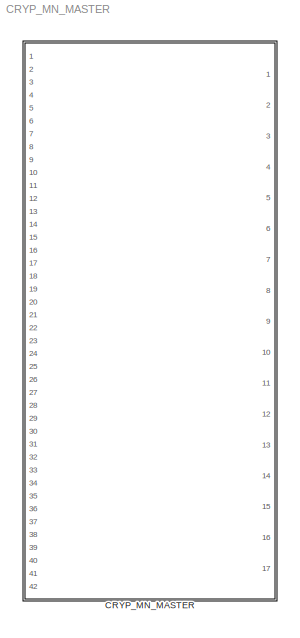
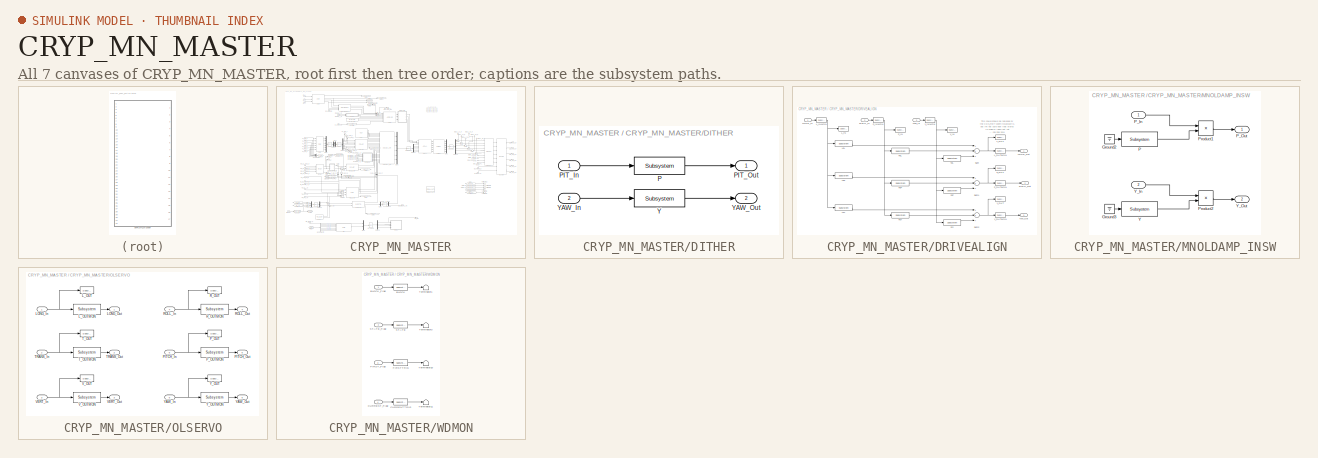
[diagram: thumbnail index - all 7 canvases of the model, root first then tree order]
MODEL CRYP_MN_MASTER
KIND library
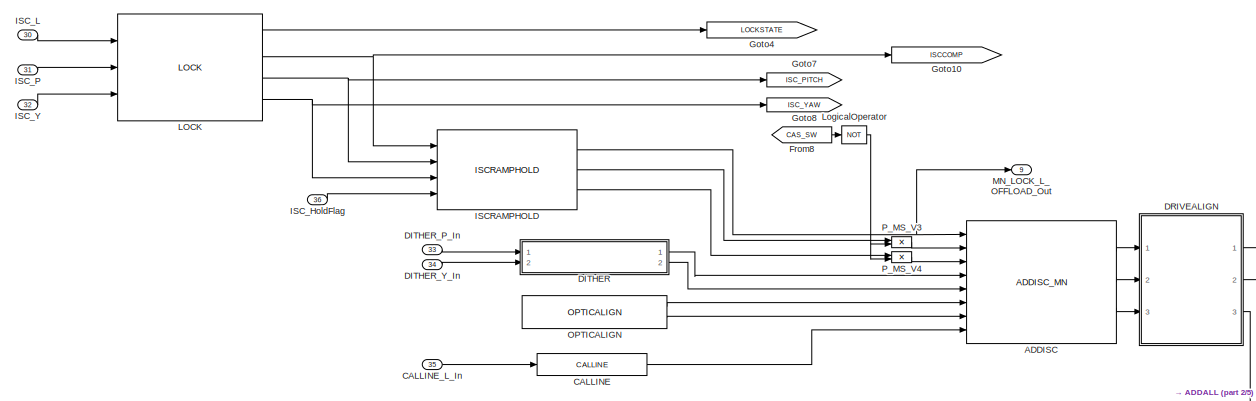
[diagram: CRYP_MN_MASTER - part 1/5, top left region]
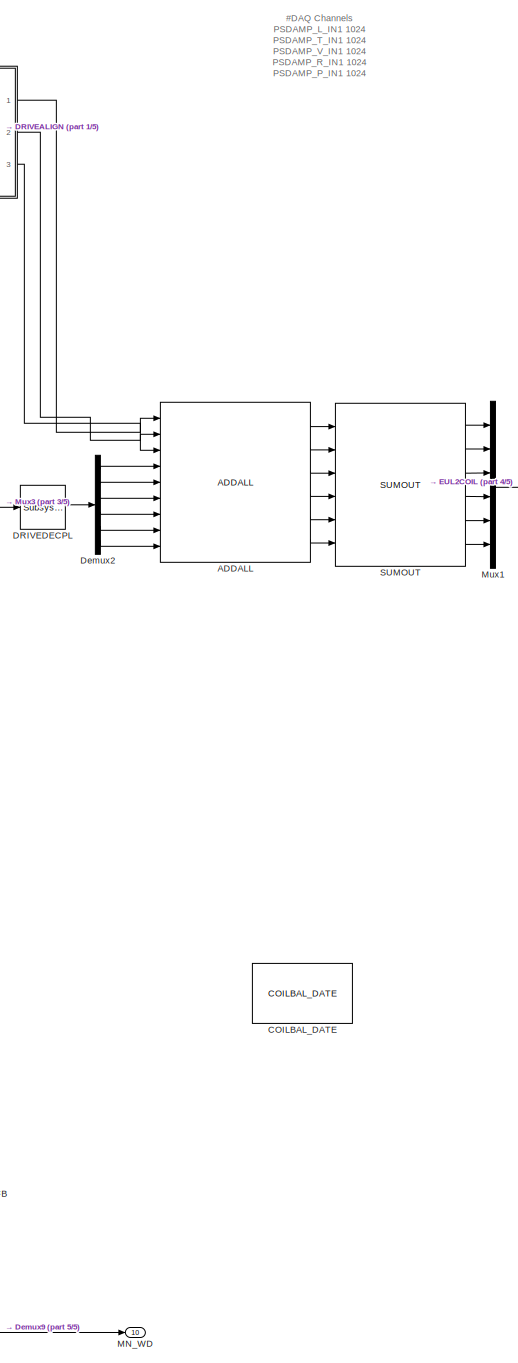
[diagram: CRYP_MN_MASTER - part 2/5, center side, full height]
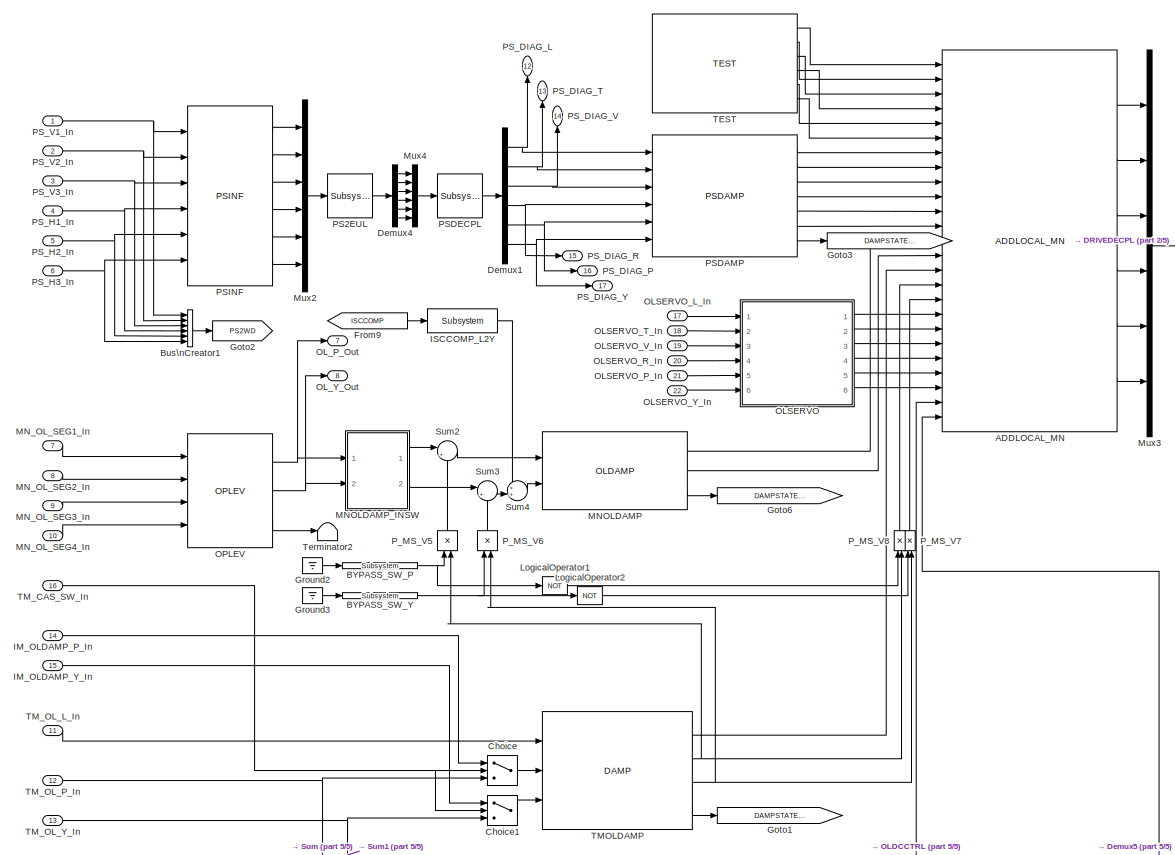
[diagram: CRYP_MN_MASTER - part 3/5, middle left region]
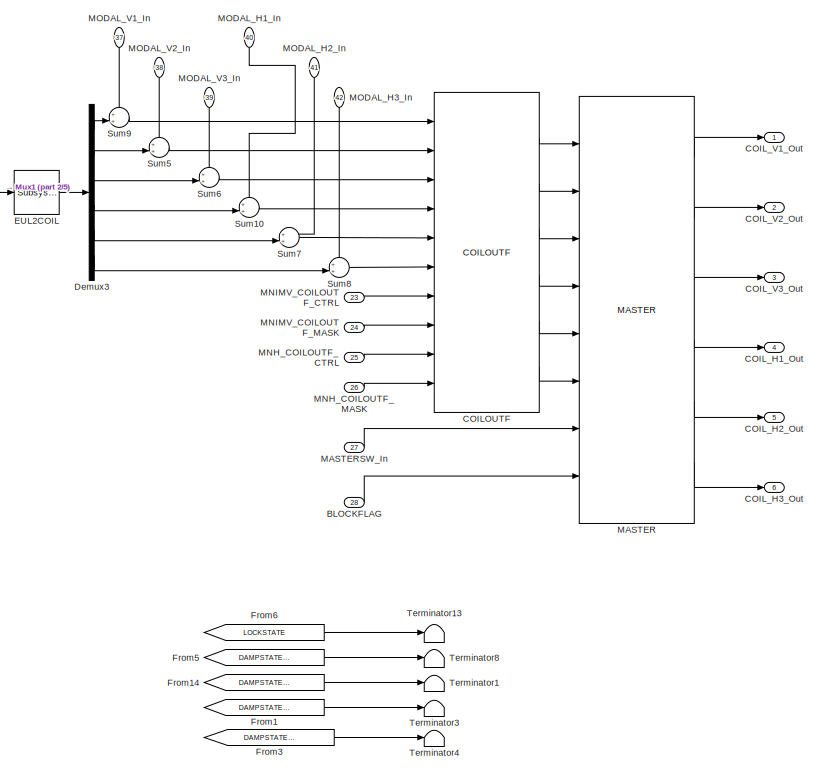
[diagram: CRYP_MN_MASTER - part 4/5, middle right region]
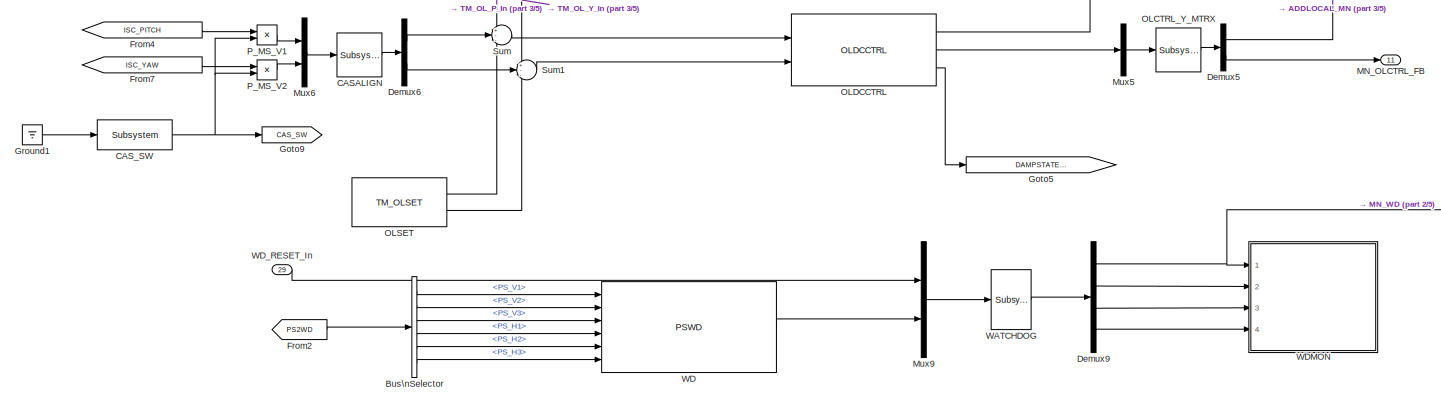
[diagram: CRYP_MN_MASTER - part 5/5, bottom left region]
BLOCK [SubSystem] CRYP_MN_MASTER
  Description = SIXOSEMSTAGE_FACE_MASTER
  Ports = [42, 17]
  RequestExecContextInheritance = off
  SID = 904
  Variant = off
BLOCK [Reference] CRYP_MN_MASTER/ADDALL  REF=VIS_LIB/CrypParts/ADDALL
  Ports = [9, 6]
  SID = 939
  SourceBlock = VIS_LIB/CrypParts/ADDALL
  SourceType = SubSystem
BLOCK [Reference] CRYP_MN_MASTER/ADDISC  REF=VIS_LIB/CrypParts/ADDISC_MN
  Ports = [8, 3]
  SID = 940
  SourceBlock = VIS_LIB/CrypParts/ADDISC_MN
  SourceType = SubSystem
BLOCK [Reference] CRYP_MN_MASTER/ADDLOCAL_MN  REF=VIS_LIB/CrypParts/ADDLOCAL_MN
  Ports = [25, 6]
  SID = 941
  SourceBlock = VIS_LIB/CrypParts/ADDLOCAL_MN
  SourceType = SubSystem
BLOCK [Inport] CRYP_MN_MASTER/BLOCKFLAG
  IconDisplay = Port number
  Port = 28
  SID = 932
BLOCK [Reference] CRYP_MN_MASTER/BYPASS_SW_P  REF=cdsEpicsBinIn/Subsystem
  AttributesFormatString = %<Tag>
  Description = Purpose:                                                                            \nCreate an EPICS binary (0 or 1) input channel to the FE realtime controls.          \n                                                                                    \nOperation:                                                                          \nOutputs value from an EPICS ai record. Value is binary i...<+252ch>  <repeated x5 — deduplicated; at blocks: BYPASS_SW_P, BYPASS_SW_Y, CAS_SW, P, Y>
  Ports = [1, 1]
  SID = 942
  SourceBlock = cdsEpicsBinIn/Subsystem
  SourceType = SubSystem
  Tag = cdsEpicsBinIn
BLOCK [Reference] CRYP_MN_MASTER/BYPASS_SW_Y  REF=cdsEpicsBinIn/Subsystem
  AttributesFormatString = %<Tag>
  Ports = [1, 1]
  SID = 943
  SourceBlock = cdsEpicsBinIn/Subsystem
  SourceType = SubSystem
  Tag = cdsEpicsBinIn
BLOCK [BusCreator] CRYP_MN_MASTER/Bus\nCreator1
  DisplayOption = bar
  InheritFromInputs = on
  Inputs = 'PS_V1','PS_V2','PS_V3','PS_H1','PS_H2','PS_H3'
  Ports = [6, 1]
  SID = 944
BLOCK [BusSelector] CRYP_MN_MASTER/Bus\nSelector
  OutputSignals = PS_V1,PS_V2,PS_V3,PS_H1,PS_H2,PS_H3
  Ports = [1, 6]
  SID = 945
BLOCK [Reference] CRYP_MN_MASTER/CALLINE  REF=VIS_LIB/CALLINE
  Ports = [1, 1]
  SID = 1133
  SourceBlock = VIS_LIB/CALLINE
  SourceType = SubSystem
BLOCK [Inport] CRYP_MN_MASTER/CALLINE_L_In
  IconDisplay = Port number
  Port = 35
  SID = 1134
BLOCK [Reference] CRYP_MN_MASTER/CASALIGN  REF=cdsMuxMatrix/Subsystem
  AttributesFormatString = %<Tag>
  Description = Any size matrix. Inputs and outputs must be connected using Mux and Demux parts.
  Ports = [1, 1]
  SID = 946
  SourceBlock = cdsMuxMatrix/Subsystem
  SourceType = SubSystem
  Tag = cdsMuxMatrix
BLOCK [Reference] CRYP_MN_MASTER/CAS_SW  REF=cdsEpicsBinIn/Subsystem
  AttributesFormatString = %<Tag>
  Ports = [1, 1]
  SID = 947
  SourceBlock = cdsEpicsBinIn/Subsystem
  SourceType = SubSystem
  Tag = cdsEpicsBinIn
BLOCK [Reference] CRYP_MN_MASTER/COILBAL_DATE  REF=VIS_LIB/COILBAL_DATE
  Ports = []
  SID = 1179
  SourceBlock = VIS_LIB/COILBAL_DATE
  SourceType = SubSystem
BLOCK [Reference] CRYP_MN_MASTER/COILOUTF  REF=VIS_LIB/CRYp Blocks/COILOUTF
  Ports = [10, 6]
  SID = 948
  SourceBlock = VIS_LIB/CRYp Blocks/COILOUTF
  SourceType = SubSystem
BLOCK [Outport] CRYP_MN_MASTER/COIL_H1_Out
  IconDisplay = Port number
  Port = 4
  SID = 1117
BLOCK [Outport] CRYP_MN_MASTER/COIL_H2_Out
  IconDisplay = Port number
  Port = 5
  SID = 1118
BLOCK [Outport] CRYP_MN_MASTER/COIL_H3_Out
  IconDisplay = Port number
  Port = 6
  SID = 1119
BLOCK [Outport] CRYP_MN_MASTER/COIL_V1_Out
  IconDisplay = Port number
  SID = 1114
BLOCK [Outport] CRYP_MN_MASTER/COIL_V2_Out
  IconDisplay = Port number
  Port = 2
  SID = 1115
BLOCK [Outport] CRYP_MN_MASTER/COIL_V3_Out
  IconDisplay = Port number
  Port = 3
  SID = 1116
BLOCK [Switch] CRYP_MN_MASTER/Choice
  InputSameDT = off
  SID = 949
  SaturateOnIntegerOverflow = off
  Threshold = .5
BLOCK [Switch] CRYP_MN_MASTER/Choice1
  InputSameDT = off
  SID = 950
  SaturateOnIntegerOverflow = off
  Threshold = .5
BLOCK [SubSystem] CRYP_MN_MASTER/DITHER
  Ports = [2, 2]
  RequestExecContextInheritance = off
  SID = 951
  Variant = off
BLOCK [Reference] CRYP_MN_MASTER/DITHER/P  REF=cdsFilt/Subsystem
  AttributesFormatString = %<Tag>
  Description = Purpose:                                                                                                                                                                                                                                  \nStandard CDS IIR filter module.                                                                                                                                     ...<+1302ch>  <repeated x12 — deduplicated; at blocks: P, Y, L2L, L2P, L2Y, P2L, P2P, P2Y, Y2L, Y2P, Y2Y, ISCCOMP_L2Y>
  Ports = [1, 1]
  SID = 954
  SourceBlock = cdsFilt/Subsystem
  SourceType = SubSystem
  Tag = cdsFilt
BLOCK [Inport] CRYP_MN_MASTER/DITHER/PIT_In
  IconDisplay = Port number
  SID = 952
BLOCK [Outport] CRYP_MN_MASTER/DITHER/PIT_Out
  IconDisplay = Port number
  SID = 956
BLOCK [Reference] CRYP_MN_MASTER/DITHER/Y  REF=cdsFilt/Subsystem
  AttributesFormatString = %<Tag>
  Ports = [1, 1]
  SID = 955
  SourceBlock = cdsFilt/Subsystem
  SourceType = SubSystem
  Tag = cdsFilt
BLOCK [Inport] CRYP_MN_MASTER/DITHER/YAW_In
  IconDisplay = Port number
  Port = 2
  SID = 953
BLOCK [Outport] CRYP_MN_MASTER/DITHER/YAW_Out
  IconDisplay = Port number
  Port = 2
  SID = 957
BLOCK [Inport] CRYP_MN_MASTER/DITHER_P_In
  IconDisplay = Port number
  Port = 33
  SID = 937
BLOCK [Inport] CRYP_MN_MASTER/DITHER_Y_In
  IconDisplay = Port number
  Port = 34
  SID = 938
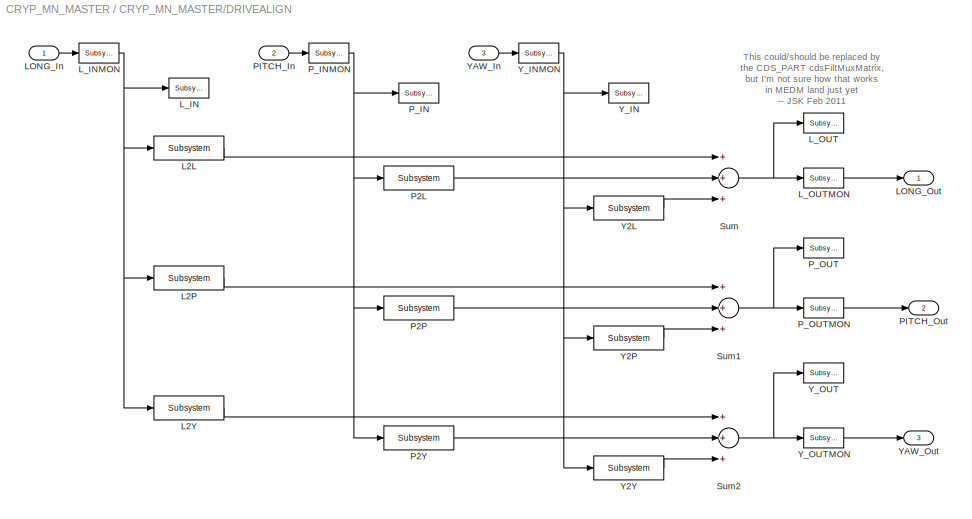
BLOCK [SubSystem] CRYP_MN_MASTER/DRIVEALIGN
  Ports = [3, 3]
  RequestExecContextInheritance = off
  SID = 958
  Variant = off
BLOCK [Reference] CRYP_MN_MASTER/DRIVEALIGN/L2L  REF=cdsFilt/Subsystem
  AttributesFormatString = %<Tag>
  Ports = [1, 1]
  SID = 962
  SourceBlock = cdsFilt/Subsystem
  SourceType = SubSystem
  Tag = cdsFilt
BLOCK [Reference] CRYP_MN_MASTER/DRIVEALIGN/L2P  REF=cdsFilt/Subsystem
  AttributesFormatString = %<Tag>
  Ports = [1, 1]
  SID = 963
  SourceBlock = cdsFilt/Subsystem
  SourceType = SubSystem
  Tag = cdsFilt
BLOCK [Reference] CRYP_MN_MASTER/DRIVEALIGN/L2Y  REF=cdsFilt/Subsystem
  AttributesFormatString = %<Tag>
  Ports = [1, 1]
  SID = 964
  SourceBlock = cdsFilt/Subsystem
  SourceType = SubSystem
  Tag = cdsFilt
BLOCK [Inport] CRYP_MN_MASTER/DRIVEALIGN/LONG_In
  IconDisplay = Port number
  SID = 959
BLOCK [Outport] CRYP_MN_MASTER/DRIVEALIGN/LONG_Out
  IconDisplay = Port number
  SID = 986
BLOCK [Reference] CRYP_MN_MASTER/DRIVEALIGN/L_IN  REF=cdsTP/Subsystem
  AttributesFormatString = %<Tag>
  Ports = [1]
  SID = 965
  SourceBlock = cdsTP/Subsystem
  SourceType = SubSystem
  Tag = Test Point
BLOCK [Reference] CRYP_MN_MASTER/DRIVEALIGN/L_INMON  REF=cdsEpicsOut/Subsystem
  AttributesFormatString = %<Tag>
  Description = Purpose:                                          \nOutput a FE signal to an EPICS channel.           \n                                                  \nOperation:                                        \nTakes input value and passes it to EPICS record.  \n                                                  \nUsage:                                            \nName the part with the desired EPICS...<+14ch>  <repeated x12 — deduplicated; at blocks: L_INMON, L_OUTMON, P_INMON, P_OUTMON, Y_INMON, Y_OUTMON, R_OUTMON, T_OUTMON, V_OUTMON>
  Ports = [1, 1]
  SID = 966
  SourceBlock = cdsEpicsOut/Subsystem
  SourceType = SubSystem
  Tag = cdsEpicsOutput
BLOCK [Reference] CRYP_MN_MASTER/DRIVEALIGN/L_OUT  REF=cdsTP/Subsystem
  AttributesFormatString = %<Tag>
  Ports = [1]
  SID = 967
  SourceBlock = cdsTP/Subsystem
  SourceType = SubSystem
  Tag = Test Point
BLOCK [Reference] CRYP_MN_MASTER/DRIVEALIGN/L_OUTMON  REF=cdsEpicsOut/Subsystem
  AttributesFormatString = %<Tag>
  Ports = [1, 1]
  SID = 968
  SourceBlock = cdsEpicsOut/Subsystem
  SourceType = SubSystem
  Tag = cdsEpicsOutput
BLOCK [Reference] CRYP_MN_MASTER/DRIVEALIGN/P2L  REF=cdsFilt/Subsystem
  AttributesFormatString = %<Tag>
  Ports = [1, 1]
  SID = 969
  SourceBlock = cdsFilt/Subsystem
  SourceType = SubSystem
  Tag = cdsFilt
BLOCK [Reference] CRYP_MN_MASTER/DRIVEALIGN/P2P  REF=cdsFilt/Subsystem
  AttributesFormatString = %<Tag>
  Ports = [1, 1]
  SID = 970
  SourceBlock = cdsFilt/Subsystem
  SourceType = SubSystem
  Tag = cdsFilt
BLOCK [Reference] CRYP_MN_MASTER/DRIVEALIGN/P2Y  REF=cdsFilt/Subsystem
  AttributesFormatString = %<Tag>
  Ports = [1, 1]
  SID = 971
  SourceBlock = cdsFilt/Subsystem
  SourceType = SubSystem
  Tag = cdsFilt
BLOCK [Inport] CRYP_MN_MASTER/DRIVEALIGN/PITCH_In
  IconDisplay = Port number
  Port = 2
  SID = 960
BLOCK [Outport] CRYP_MN_MASTER/DRIVEALIGN/PITCH_Out
  IconDisplay = Port number
  Port = 2
  SID = 987
BLOCK [Reference] CRYP_MN_MASTER/DRIVEALIGN/P_IN  REF=cdsTP/Subsystem
  AttributesFormatString = %<Tag>
  Ports = [1]
  SID = 972
  SourceBlock = cdsTP/Subsystem
  SourceType = SubSystem
  Tag = Test Point
BLOCK [Reference] CRYP_MN_MASTER/DRIVEALIGN/P_INMON  REF=cdsEpicsOut/Subsystem
  AttributesFormatString = %<Tag>
  Ports = [1, 1]
  SID = 973
  SourceBlock = cdsEpicsOut/Subsystem
  SourceType = SubSystem
  Tag = cdsEpicsOutput
BLOCK [Reference] CRYP_MN_MASTER/DRIVEALIGN/P_OUT  REF=cdsTP/Subsystem
  AttributesFormatString = %<Tag>
  Ports = [1]
  SID = 974
  SourceBlock = cdsTP/Subsystem
  SourceType = SubSystem
  Tag = Test Point
BLOCK [Reference] CRYP_MN_MASTER/DRIVEALIGN/P_OUTMON  REF=cdsEpicsOut/Subsystem
  AttributesFormatString = %<Tag>
  Ports = [1, 1]
  SID = 975
  SourceBlock = cdsEpicsOut/Subsystem
  SourceType = SubSystem
  Tag = cdsEpicsOutput
BLOCK [Sum] CRYP_MN_MASTER/DRIVEALIGN/Sum
  InputSameDT = off
  Inputs = +++
  OutDataTypeStr = Inherit: Inherit via internal rule
  Ports = [3, 1]
  SID = 976
  SaturateOnIntegerOverflow = off
BLOCK [Sum] CRYP_MN_MASTER/DRIVEALIGN/Sum1
  InputSameDT = off
  Inputs = +++
  OutDataTypeStr = Inherit: Inherit via internal rule
  Ports = [3, 1]
  SID = 977
  SaturateOnIntegerOverflow = off
BLOCK [Sum] CRYP_MN_MASTER/DRIVEALIGN/Sum2
  InputSameDT = off
  Inputs = +++
  OutDataTypeStr = Inherit: Inherit via internal rule
  Ports = [3, 1]
  SID = 978
  SaturateOnIntegerOverflow = off
BLOCK [Reference] CRYP_MN_MASTER/DRIVEALIGN/Y2L  REF=cdsFilt/Subsystem
  AttributesFormatString = %<Tag>
  Ports = [1, 1]
  SID = 979
  SourceBlock = cdsFilt/Subsystem
  SourceType = SubSystem
  Tag = cdsFilt
BLOCK [Reference] CRYP_MN_MASTER/DRIVEALIGN/Y2P  REF=cdsFilt/Subsystem
  AttributesFormatString = %<Tag>
  Ports = [1, 1]
  SID = 980
  SourceBlock = cdsFilt/Subsystem
  SourceType = SubSystem
  Tag = cdsFilt
BLOCK [Reference] CRYP_MN_MASTER/DRIVEALIGN/Y2Y  REF=cdsFilt/Subsystem
  AttributesFormatString = %<Tag>
  Ports = [1, 1]
  SID = 981
  SourceBlock = cdsFilt/Subsystem
  SourceType = SubSystem
  Tag = cdsFilt
BLOCK [Inport] CRYP_MN_MASTER/DRIVEALIGN/YAW_In
  IconDisplay = Port number
  Port = 3
  SID = 961
BLOCK [Outport] CRYP_MN_MASTER/DRIVEALIGN/YAW_Out
  IconDisplay = Port number
  Port = 3
  SID = 988
BLOCK [Reference] CRYP_MN_MASTER/DRIVEALIGN/Y_IN  REF=cdsTP/Subsystem
  AttributesFormatString = %<Tag>
  Ports = [1]
  SID = 982
  SourceBlock = cdsTP/Subsystem
  SourceType = SubSystem
  Tag = Test Point
BLOCK [Reference] CRYP_MN_MASTER/DRIVEALIGN/Y_INMON  REF=cdsEpicsOut/Subsystem
  AttributesFormatString = %<Tag>
  Ports = [1, 1]
  SID = 983
  SourceBlock = cdsEpicsOut/Subsystem
  SourceType = SubSystem
  Tag = cdsEpicsOutput
BLOCK [Reference] CRYP_MN_MASTER/DRIVEALIGN/Y_OUT  REF=cdsTP/Subsystem
  AttributesFormatString = %<Tag>
  Ports = [1]
  SID = 984
  SourceBlock = cdsTP/Subsystem
  SourceType = SubSystem
  Tag = Test Point
BLOCK [Reference] CRYP_MN_MASTER/DRIVEALIGN/Y_OUTMON  REF=cdsEpicsOut/Subsystem
  AttributesFormatString = %<Tag>
  Ports = [1, 1]
  SID = 985
  SourceBlock = cdsEpicsOut/Subsystem
  SourceType = SubSystem
  Tag = cdsEpicsOutput
BLOCK [Reference] CRYP_MN_MASTER/DRIVEDECPL  REF=cdsMuxMatrix/Subsystem
  AttributesFormatString = %<Tag>
  Description = Any size matrix. Inputs and outputs must be connected using Mux and Demux parts.
  Ports = [1, 1]
  SID = 990
  SourceBlock = cdsMuxMatrix/Subsystem
  SourceType = SubSystem
  Tag = cdsMuxMatrix
BLOCK [Demux] CRYP_MN_MASTER/Demux1
  DisplayOption = bar
  Outputs = 6
  Ports = [1, 6]
  SID = 991
BLOCK [Demux] CRYP_MN_MASTER/Demux2
  DisplayOption = bar
  Outputs = 6
  Ports = [1, 6]
  SID = 992
BLOCK [Demux] CRYP_MN_MASTER/Demux3
  DisplayOption = bar
  Outputs = 6
  Ports = [1, 6]
  SID = 993
BLOCK [Demux] CRYP_MN_MASTER/Demux4
  DisplayOption = bar
  Outputs = 6
  Ports = [1, 6]
  SID = 994
BLOCK [Demux] CRYP_MN_MASTER/Demux5
  DisplayOption = bar
  Outputs = 2
  Ports = [1, 2]
  SID = 995
BLOCK [Demux] CRYP_MN_MASTER/Demux6
  DisplayOption = bar
  Outputs = 2
  Ports = [1, 2]
  SID = 996
BLOCK [Demux] CRYP_MN_MASTER/Demux9
  DisplayOption = bar
  Ports = [1, 4]
  SID = 997
BLOCK [Reference] CRYP_MN_MASTER/EUL2COIL  REF=cdsMuxMatrix/Subsystem
  AttributesFormatString = %<Tag>
  Description = Any size matrix. Inputs and outputs must be connected using Mux and Demux parts.
  Ports = [1, 1]
  SID = 998
  SourceBlock = cdsMuxMatrix/Subsystem
  SourceType = SubSystem
  Tag = cdsMuxMatrix
BLOCK [From] CRYP_MN_MASTER/From1
  CloseFcn = tagdialog Close
  GotoTag = DAMPSTATE_TMOL
  SID = 999
BLOCK [From] CRYP_MN_MASTER/From14
  CloseFcn = tagdialog Close
  GotoTag = DAMPSTATE_MNOL
  SID = 1000
BLOCK [From] CRYP_MN_MASTER/From2
  CloseFcn = tagdialog Close
  GotoTag = PS2WD
  SID = 1001
BLOCK [From] CRYP_MN_MASTER/From3
  CloseFcn = tagdialog Close
  GotoTag = DAMPSTATE_OLDCCTRL
  SID = 1002
BLOCK [From] CRYP_MN_MASTER/From4
  CloseFcn = tagdialog Close
  GotoTag = ISC_PITCH
  SID = 1003
BLOCK [From] CRYP_MN_MASTER/From5
  CloseFcn = tagdialog Close
  GotoTag = DAMPSTATE_PS
  SID = 1004
BLOCK [From] CRYP_MN_MASTER/From6
  CloseFcn = tagdialog Close
  GotoTag = LOCKSTATE
  SID = 1005
BLOCK [From] CRYP_MN_MASTER/From7
  CloseFcn = tagdialog Close
  GotoTag = ISC_YAW
  SID = 1006
BLOCK [From] CRYP_MN_MASTER/From8
  CloseFcn = tagdialog Close
  GotoTag = CAS_SW
  SID = 1007
BLOCK [From] CRYP_MN_MASTER/From9
  CloseFcn = tagdialog Close
  GotoTag = ISCCOMP
  SID = 1130
BLOCK [Goto] CRYP_MN_MASTER/Goto1
  GotoTag = DAMPSTATE_TMOL
  SID = 1008
BLOCK [Goto] CRYP_MN_MASTER/Goto10
  GotoTag = ISCCOMP
  SID = 1129
BLOCK [Goto] CRYP_MN_MASTER/Goto2
  GotoTag = PS2WD
  SID = 1009
BLOCK [Goto] CRYP_MN_MASTER/Goto3
  GotoTag = DAMPSTATE_PS
  SID = 1010
BLOCK [Goto] CRYP_MN_MASTER/Goto4
  GotoTag = LOCKSTATE
  SID = 1011
BLOCK [Goto] CRYP_MN_MASTER/Goto5
  GotoTag = DAMPSTATE_OLDCCTRL
  SID = 1012
BLOCK [Goto] CRYP_MN_MASTER/Goto6
  GotoTag = DAMPSTATE_MNOL
  SID = 1013
BLOCK [Goto] CRYP_MN_MASTER/Goto7
  GotoTag = ISC_PITCH
  SID = 1014
BLOCK [Goto] CRYP_MN_MASTER/Goto8
  GotoTag = ISC_YAW
  SID = 1015
BLOCK [Goto] CRYP_MN_MASTER/Goto9
  GotoTag = CAS_SW
  SID = 1016
BLOCK [Ground] CRYP_MN_MASTER/Ground1
  SID = 1017
BLOCK [Ground] CRYP_MN_MASTER/Ground2
  SID = 1018
BLOCK [Ground] CRYP_MN_MASTER/Ground3
  SID = 1019
BLOCK [Inport] CRYP_MN_MASTER/IM_OLDAMP_P_In
  IconDisplay = Port number
  Port = 14
  SID = 918
BLOCK [Inport] CRYP_MN_MASTER/IM_OLDAMP_Y_In
  IconDisplay = Port number
  Port = 15
  SID = 919
BLOCK [Reference] CRYP_MN_MASTER/ISCCOMP_L2Y  REF=cdsFilt/Subsystem
  AttributesFormatString = %<Tag>
  Ports = [1, 1]
  SID = 1132
  SourceBlock = cdsFilt/Subsystem
  SourceType = SubSystem
  Tag = cdsFilt
BLOCK [Reference] CRYP_MN_MASTER/ISCRAMPHOLD  REF=KAGRA_UTIL/ISCRAMPHOLD
  Ports = [4, 3]
  SID = 1143
  SourceBlock = KAGRA_UTIL/ISCRAMPHOLD
  SourceType = SubSystem
BLOCK [Inport] CRYP_MN_MASTER/ISC_HoldFlag
  IconDisplay = Port number
  Port = 36
  SID = 1144
BLOCK [Inport] CRYP_MN_MASTER/ISC_L
  IconDisplay = Port number
  Port = 30
  SID = 934
BLOCK [Inport] CRYP_MN_MASTER/ISC_P
  IconDisplay = Port number
  Port = 31
  SID = 935
BLOCK [Inport] CRYP_MN_MASTER/ISC_Y
  IconDisplay = Port number
  Port = 32
  SID = 936
BLOCK [Reference] CRYP_MN_MASTER/LOCK  REF=VIS_LIB/CrypParts/LOCK
  Ports = [3, 4]
  SID = 1020
  SourceBlock = VIS_LIB/CrypParts/LOCK
  SourceType = SubSystem
BLOCK [Logic] CRYP_MN_MASTER/LogicalOperator
  AllPortsSameDT = off
  Operator = NOT
  OutDataTypeStr = boolean
  Ports = [1, 1]
  SID = 1021
BLOCK [Logic] CRYP_MN_MASTER/LogicalOperator1
  AllPortsSameDT = off
  Operator = NOT
  OutDataTypeStr = boolean
  Ports = [1, 1]
  SID = 1022
BLOCK [Logic] CRYP_MN_MASTER/LogicalOperator2
  AllPortsSameDT = off
  Operator = NOT
  OutDataTypeStr = boolean
  Ports = [1, 1]
  SID = 1023
BLOCK [Reference] CRYP_MN_MASTER/MASTER  REF=VIS_LIB/CRYp Blocks/MASTER
  Ports = [8, 6]
  SID = 1024
  SourceBlock = VIS_LIB/CRYp Blocks/MASTER
  SourceType = SubSystem
BLOCK [Inport] CRYP_MN_MASTER/MASTERSW_In
  IconDisplay = Port number
  Port = 27
  SID = 931
BLOCK [Inport] CRYP_MN_MASTER/MNH_COILOUTF_CTRL
  IconDisplay = Port number
  Port = 25
  SID = 929
BLOCK [Inport] CRYP_MN_MASTER/MNH_COILOUTF_MASK
  IconDisplay = Port number
  Port = 26
  SID = 930
BLOCK [Inport] CRYP_MN_MASTER/MNIMV_COILOUTF_CTRL
  IconDisplay = Port number
  Port = 23
  SID = 927
BLOCK [Inport] CRYP_MN_MASTER/MNIMV_COILOUTF_MASK
  IconDisplay = Port number
  Port = 24
  SID = 928
BLOCK [Reference] CRYP_MN_MASTER/MNOLDAMP  REF=VIS_LIB/OLDAMP
  Ports = [2, 3]
  SID = 1025
  SourceBlock = VIS_LIB/OLDAMP
  SourceType = SubSystem
BLOCK [SubSystem] CRYP_MN_MASTER/MNOLDAMP_INSW
  Ports = [2, 2]
  RequestExecContextInheritance = off
  SID = 1026
  Variant = off
BLOCK [Ground] CRYP_MN_MASTER/MNOLDAMP_INSW/Ground2
  SID = 1029
BLOCK [Ground] CRYP_MN_MASTER/MNOLDAMP_INSW/Ground3
  SID = 1030
BLOCK [Reference] CRYP_MN_MASTER/MNOLDAMP_INSW/P  REF=cdsEpicsBinIn/Subsystem
  AttributesFormatString = %<Tag>
  Ports = [1, 1]
  SID = 1031
  SourceBlock = cdsEpicsBinIn/Subsystem
  SourceType = SubSystem
  Tag = cdsEpicsBinIn
BLOCK [Inport] CRYP_MN_MASTER/MNOLDAMP_INSW/P_In
  IconDisplay = Port number
  SID = 1027
BLOCK [Outport] CRYP_MN_MASTER/MNOLDAMP_INSW/P_Out
  IconDisplay = Port number
  SID = 1035
BLOCK [Product] CRYP_MN_MASTER/MNOLDAMP_INSW/Product1
  InputSameDT = off
  OutDataTypeStr = Inherit: Inherit via internal rule
  Ports = [2, 1]
  SID = 1032
  SaturateOnIntegerOverflow = off
BLOCK [Product] CRYP_MN_MASTER/MNOLDAMP_INSW/Product2
  InputSameDT = off
  OutDataTypeStr = Inherit: Inherit via internal rule
  Ports = [2, 1]
  SID = 1033
  SaturateOnIntegerOverflow = off
BLOCK [Reference] CRYP_MN_MASTER/MNOLDAMP_INSW/Y  REF=cdsEpicsBinIn/Subsystem
  AttributesFormatString = %<Tag>
  Ports = [1, 1]
  SID = 1034
  SourceBlock = cdsEpicsBinIn/Subsystem
  SourceType = SubSystem
  Tag = cdsEpicsBinIn
BLOCK [Inport] CRYP_MN_MASTER/MNOLDAMP_INSW/Y_In
  IconDisplay = Port number
  Port = 2
  SID = 1028
BLOCK [Outport] CRYP_MN_MASTER/MNOLDAMP_INSW/Y_Out
  IconDisplay = Port number
  Port = 2
  SID = 1036
BLOCK [Outport] CRYP_MN_MASTER/MN_LOCK_L_OFFLOAD_Out
  IconDisplay = Port number
  Port = 9
  SID = 1122
BLOCK [Outport] CRYP_MN_MASTER/MN_OLCTRL_FB
  IconDisplay = Port number
  Port = 11
  SID = 1124
BLOCK [Inport] CRYP_MN_MASTER/MN_OL_SEG1_In
  IconDisplay = Port number
  Port = 7
  SID = 911
BLOCK [Inport] CRYP_MN_MASTER/MN_OL_SEG2_In
  IconDisplay = Port number
  Port = 8
  SID = 912
BLOCK [Inport] CRYP_MN_MASTER/MN_OL_SEG3_In
  IconDisplay = Port number
  Port = 9
  SID = 913
BLOCK [Inport] CRYP_MN_MASTER/MN_OL_SEG4_In
  IconDisplay = Port number
  Port = 10
  SID = 914
BLOCK [Outport] CRYP_MN_MASTER/MN_WD
  IconDisplay = Port number
  Port = 10
  SID = 1123
BLOCK [Inport] CRYP_MN_MASTER/MODAL_H1_In
  IconDisplay = Port number
  Port = 40
  SID = 1167
BLOCK [Inport] CRYP_MN_MASTER/MODAL_H2_In
  IconDisplay = Port number
  Port = 41
  SID = 1168
BLOCK [Inport] CRYP_MN_MASTER/MODAL_H3_In
  IconDisplay = Port number
  Port = 42
  SID = 1169
BLOCK [Inport] CRYP_MN_MASTER/MODAL_V1_In
  IconDisplay = Port number
  Port = 37
  SID = 1164
BLOCK [Inport] CRYP_MN_MASTER/MODAL_V2_In
  IconDisplay = Port number
  Port = 38
  SID = 1165
BLOCK [Inport] CRYP_MN_MASTER/MODAL_V3_In
  IconDisplay = Port number
  Port = 39
  SID = 1166
BLOCK [Mux] CRYP_MN_MASTER/Mux1
  DisplayOption = bar
  Inputs = 6
  Ports = [6, 1]
  SID = 1037
BLOCK [Mux] CRYP_MN_MASTER/Mux2
  DisplayOption = bar
  Inputs = 6
  Ports = [6, 1]
  SID = 1038
BLOCK [Mux] CRYP_MN_MASTER/Mux3
  DisplayOption = bar
  Inputs = 6
  Ports = [6, 1]
  SID = 1039
BLOCK [Mux] CRYP_MN_MASTER/Mux4
  DisplayOption = bar
  Inputs = 6
  Ports = [6, 1]
  SID = 1040
BLOCK [Mux] CRYP_MN_MASTER/Mux5
  DisplayOption = bar
  Inputs = 1
  Ports = [1, 1]
  SID = 1041
BLOCK [Mux] CRYP_MN_MASTER/Mux6
  DisplayOption = bar
  Inputs = 2
  Ports = [2, 1]
  SID = 1042
BLOCK [Mux] CRYP_MN_MASTER/Mux9
  DisplayOption = bar
  Inputs = 2
  Ports = [2, 1]
  SID = 1043
BLOCK [Reference] CRYP_MN_MASTER/OLCTRL_Y_MTRX  REF=cdsMuxMatrix/Subsystem
  AttributesFormatString = %<Tag>
  Description = Any size matrix. Inputs and outputs must be connected using Mux and Demux parts.
  Ports = [1, 1]
  SID = 1044
  SourceBlock = cdsMuxMatrix/Subsystem
  SourceType = SubSystem
  Tag = cdsMuxMatrix
BLOCK [Reference] CRYP_MN_MASTER/OLDCCTRL  REF=VIS_LIB/CrypParts/OLDCCTRL
  Ports = [2, 3]
  SID = 1045
  SourceBlock = VIS_LIB/CrypParts/OLDCCTRL
  SourceType = SubSystem
BLOCK [SubSystem] CRYP_MN_MASTER/OLSERVO
  Ports = [6, 6]
  RequestExecContextInheritance = off
  SID = 1046
  Variant = off
BLOCK [Inport] CRYP_MN_MASTER/OLSERVO/LONG_In
  IconDisplay = Port number
  SID = 1047
BLOCK [Outport] CRYP_MN_MASTER/OLSERVO/LONG_Out
  IconDisplay = Port number
  SID = 1065
BLOCK [Reference] CRYP_MN_MASTER/OLSERVO/L_OUT  REF=cdsTP/Subsystem
  AttributesFormatString = %<Tag>
  Ports = [1]
  SID = 1053
  SourceBlock = cdsTP/Subsystem
  SourceType = SubSystem
  Tag = Test Point
BLOCK [Reference] CRYP_MN_MASTER/OLSERVO/L_OUTMON  REF=cdsEpicsOut/Subsystem
  AttributesFormatString = %<Tag>
  Ports = [1, 1]
  SID = 1054
  SourceBlock = cdsEpicsOut/Subsystem
  SourceType = SubSystem
  Tag = cdsEpicsOutput
BLOCK [Inport] CRYP_MN_MASTER/OLSERVO/PITCH_In
  IconDisplay = Port number
  Port = 5
  SID = 1051
BLOCK [Outport] CRYP_MN_MASTER/OLSERVO/PITCH_Out
  IconDisplay = Port number
  Port = 5
  SID = 1069
BLOCK [Reference] CRYP_MN_MASTER/OLSERVO/P_OUT  REF=cdsTP/Subsystem
  AttributesFormatString = %<Tag>
  Ports = [1]
  SID = 1055
  SourceBlock = cdsTP/Subsystem
  SourceType = SubSystem
  Tag = Test Point
BLOCK [Reference] CRYP_MN_MASTER/OLSERVO/P_OUTMON  REF=cdsEpicsOut/Subsystem
  AttributesFormatString = %<Tag>
  Ports = [1, 1]
  SID = 1056
  SourceBlock = cdsEpicsOut/Subsystem
  SourceType = SubSystem
  Tag = cdsEpicsOutput
BLOCK [Inport] CRYP_MN_MASTER/OLSERVO/ROLL_In
  IconDisplay = Port number
  Port = 4
  SID = 1050
BLOCK [Outport] CRYP_MN_MASTER/OLSERVO/ROLL_Out
  IconDisplay = Port number
  Port = 4
  SID = 1068
BLOCK [Reference] CRYP_MN_MASTER/OLSERVO/R_OUT  REF=cdsTP/Subsystem
  AttributesFormatString = %<Tag>
  Ports = [1]
  SID = 1057
  SourceBlock = cdsTP/Subsystem
  SourceType = SubSystem
  Tag = Test Point
BLOCK [Reference] CRYP_MN_MASTER/OLSERVO/R_OUTMON  REF=cdsEpicsOut/Subsystem
  AttributesFormatString = %<Tag>
  Ports = [1, 1]
  SID = 1058
  SourceBlock = cdsEpicsOut/Subsystem
  SourceType = SubSystem
  Tag = cdsEpicsOutput
BLOCK [Inport] CRYP_MN_MASTER/OLSERVO/TRANS_In
  IconDisplay = Port number
  Port = 2
  SID = 1048
BLOCK [Outport] CRYP_MN_MASTER/OLSERVO/TRANS_Out
  IconDisplay = Port number
  Port = 2
  SID = 1066
BLOCK [Reference] CRYP_MN_MASTER/OLSERVO/T_OUT  REF=cdsTP/Subsystem
  AttributesFormatString = %<Tag>
  Ports = [1]
  SID = 1059
  SourceBlock = cdsTP/Subsystem
  SourceType = SubSystem
  Tag = Test Point
BLOCK [Reference] CRYP_MN_MASTER/OLSERVO/T_OUTMON  REF=cdsEpicsOut/Subsystem
  AttributesFormatString = %<Tag>
  Ports = [1, 1]
  SID = 1060
  SourceBlock = cdsEpicsOut/Subsystem
  SourceType = SubSystem
  Tag = cdsEpicsOutput
BLOCK [Inport] CRYP_MN_MASTER/OLSERVO/VERT_In
  IconDisplay = Port number
  Port = 3
  SID = 1049
BLOCK [Outport] CRYP_MN_MASTER/OLSERVO/VERT_Out
  IconDisplay = Port number
  Port = 3
  SID = 1067
BLOCK [Reference] CRYP_MN_MASTER/OLSERVO/V_OUT  REF=cdsTP/Subsystem
  AttributesFormatString = %<Tag>
  Ports = [1]
  SID = 1061
  SourceBlock = cdsTP/Subsystem
  SourceType = SubSystem
  Tag = Test Point
BLOCK [Reference] CRYP_MN_MASTER/OLSERVO/V_OUTMON  REF=cdsEpicsOut/Subsystem
  AttributesFormatString = %<Tag>
  Ports = [1, 1]
  SID = 1062
  SourceBlock = cdsEpicsOut/Subsystem
  SourceType = SubSystem
  Tag = cdsEpicsOutput
BLOCK [Inport] CRYP_MN_MASTER/OLSERVO/YAW_In
  IconDisplay = Port number
  Port = 6
  SID = 1052
BLOCK [Outport] CRYP_MN_MASTER/OLSERVO/YAW_Out
  IconDisplay = Port number
  Port = 6
  SID = 1070
BLOCK [Reference] CRYP_MN_MASTER/OLSERVO/Y_OUT  REF=cdsTP/Subsystem
  AttributesFormatString = %<Tag>
  Ports = [1]
  SID = 1063
  SourceBlock = cdsTP/Subsystem
  SourceType = SubSystem
  Tag = Test Point
BLOCK [Reference] CRYP_MN_MASTER/OLSERVO/Y_OUTMON  REF=cdsEpicsOut/Subsystem
  AttributesFormatString = %<Tag>
  Ports = [1, 1]
  SID = 1064
  SourceBlock = cdsEpicsOut/Subsystem
  SourceType = SubSystem
  Tag = cdsEpicsOutput
BLOCK [Inport] CRYP_MN_MASTER/OLSERVO_L_In
  IconDisplay = Port number
  Port = 17
  SID = 921
BLOCK [Inport] CRYP_MN_MASTER/OLSERVO_P_In
  IconDisplay = Port number
  Port = 21
  SID = 925
BLOCK [Inport] CRYP_MN_MASTER/OLSERVO_R_In
  IconDisplay = Port number
  Port = 20
  SID = 924
BLOCK [Inport] CRYP_MN_MASTER/OLSERVO_T_In
  IconDisplay = Port number
  Port = 18
  SID = 922
BLOCK [Inport] CRYP_MN_MASTER/OLSERVO_V_In
  IconDisplay = Port number
  Port = 19
  SID = 923
BLOCK [Inport] CRYP_MN_MASTER/OLSERVO_Y_In
  IconDisplay = Port number
  Port = 22
  SID = 926
BLOCK [Reference] CRYP_MN_MASTER/OLSET  REF=VIS_LIB/CrypParts/TM_OLSET
  Ports = [0, 2]
  SID = 1071
  SourceBlock = VIS_LIB/CrypParts/TM_OLSET
  SourceType = SubSystem
BLOCK [Outport] CRYP_MN_MASTER/OL_P_Out
  IconDisplay = Port number
  Port = 7
  SID = 1120
BLOCK [Outport] CRYP_MN_MASTER/OL_Y_Out
  IconDisplay = Port number
  Port = 8
  SID = 1121
BLOCK [Reference] CRYP_MN_MASTER/OPLEV  REF=VIS_LIB/CrypParts/OPLEV
  Ports = [4, 3]
  SID = 1072
  SourceBlock = VIS_LIB/CrypParts/OPLEV
  SourceType = SubSystem
BLOCK [Reference] CRYP_MN_MASTER/OPTICALIGN  REF=VIS_LIB/CrypParts/OPTICALIGN
  Ports = [0, 2]
  SID = 1073
  SourceBlock = VIS_LIB/CrypParts/OPTICALIGN
  SourceType = SubSystem
BLOCK [Reference] CRYP_MN_MASTER/PS2EUL  REF=cdsMuxMatrix/Subsystem
  AttributesFormatString = %<Tag>
  Description = Any size matrix. Inputs and outputs must be connected using Mux and Demux parts.
  Ports = [1, 1]
  SID = 1074
  SourceBlock = cdsMuxMatrix/Subsystem
  SourceType = SubSystem
  Tag = cdsMuxMatrix
BLOCK [Reference] CRYP_MN_MASTER/PSDAMP  REF=VIS_LIB/CrypParts/PSDAMP
  Ports = [6, 7]
  SID = 1075
  SourceBlock = VIS_LIB/CrypParts/PSDAMP
  SourceType = SubSystem
BLOCK [Reference] CRYP_MN_MASTER/PSDECPL  REF=cdsMuxMatrix/Subsystem
  AttributesFormatString = %<Tag>
  Description = Any size matrix. Inputs and outputs must be connected using Mux and Demux parts.
  Ports = [1, 1]
  SID = 1076
  SourceBlock = cdsMuxMatrix/Subsystem
  SourceType = SubSystem
  Tag = cdsMuxMatrix
BLOCK [Reference] CRYP_MN_MASTER/PSINF  REF=VIS_LIB/CrypParts/PSINF
  Ports = [6, 6]
  SID = 1077
  SourceBlock = VIS_LIB/CrypParts/PSINF
  SourceType = SubSystem
BLOCK [Outport] CRYP_MN_MASTER/PS_DIAG_L
  IconDisplay = Port number
  Port = 12
  SID = 1158
BLOCK [Outport] CRYP_MN_MASTER/PS_DIAG_P
  IconDisplay = Port number
  Port = 16
  SID = 1162
BLOCK [Outport] CRYP_MN_MASTER/PS_DIAG_R
  IconDisplay = Port number
  Port = 15
  SID = 1161
BLOCK [Outport] CRYP_MN_MASTER/PS_DIAG_T
  IconDisplay = Port number
  Port = 13
  SID = 1159
BLOCK [Outport] CRYP_MN_MASTER/PS_DIAG_V
  IconDisplay = Port number
  Port = 14
  SID = 1160
BLOCK [Outport] CRYP_MN_MASTER/PS_DIAG_Y
  IconDisplay = Port number
  Port = 17
  SID = 1163
BLOCK [Inport] CRYP_MN_MASTER/PS_H1_In
  IconDisplay = Port number
  Port = 4
  SID = 908
BLOCK [Inport] CRYP_MN_MASTER/PS_H2_In
  IconDisplay = Port number
  Port = 5
  SID = 909
BLOCK [Inport] CRYP_MN_MASTER/PS_H3_In
  IconDisplay = Port number
  Port = 6
  SID = 910
BLOCK [Inport] CRYP_MN_MASTER/PS_V1_In
  IconDisplay = Port number
  SID = 905
BLOCK [Inport] CRYP_MN_MASTER/PS_V2_In
  IconDisplay = Port number
  Port = 2
  SID = 906
BLOCK [Inport] CRYP_MN_MASTER/PS_V3_In
  IconDisplay = Port number
  Port = 3
  SID = 907
BLOCK [Product] CRYP_MN_MASTER/P_MS_V1
  InputSameDT = off
  OutDataTypeStr = Inherit: Inherit via internal rule
  Ports = [2, 1]
  SID = 1078
  SaturateOnIntegerOverflow = off
BLOCK [Product] CRYP_MN_MASTER/P_MS_V2
  InputSameDT = off
  OutDataTypeStr = Inherit: Inherit via internal rule
  Ports = [2, 1]
  SID = 1079
  SaturateOnIntegerOverflow = off
BLOCK [Product] CRYP_MN_MASTER/P_MS_V3
  InputSameDT = off
  OutDataTypeStr = Inherit: Inherit via internal rule
  Ports = [2, 1]
  SID = 1080
  SaturateOnIntegerOverflow = off
BLOCK [Product] CRYP_MN_MASTER/P_MS_V4
  InputSameDT = off
  OutDataTypeStr = Inherit: Inherit via internal rule
  Ports = [2, 1]
  SID = 1081
  SaturateOnIntegerOverflow = off
BLOCK [Product] CRYP_MN_MASTER/P_MS_V5
  InputSameDT = off
  OutDataTypeStr = Inherit: Inherit via internal rule
  Ports = [2, 1]
  SID = 1082
  SaturateOnIntegerOverflow = off
BLOCK [Product] CRYP_MN_MASTER/P_MS_V6
  InputSameDT = off
  OutDataTypeStr = Inherit: Inherit via internal rule
  Ports = [2, 1]
  SID = 1083
  SaturateOnIntegerOverflow = off
BLOCK [Product] CRYP_MN_MASTER/P_MS_V7
  InputSameDT = off
  OutDataTypeStr = Inherit: Inherit via internal rule
  Ports = [2, 1]
  SID = 1084
  SaturateOnIntegerOverflow = off
BLOCK [Product] CRYP_MN_MASTER/P_MS_V8
  InputSameDT = off
  OutDataTypeStr = Inherit: Inherit via internal rule
  Ports = [2, 1]
  SID = 1085
  SaturateOnIntegerOverflow = off
BLOCK [Reference] CRYP_MN_MASTER/SUMOUT  REF=VIS_LIB/CrypParts/SUMOUT
  Ports = [6, 6]
  SID = 1086
  SourceBlock = VIS_LIB/CrypParts/SUMOUT
  SourceType = SubSystem
BLOCK [Sum] CRYP_MN_MASTER/Sum
  IconShape = round
  InputSameDT = off
  Inputs = +--
  OutDataTypeStr = Inherit: Inherit via internal rule
  Ports = [3, 1]
  SID = 1087
  SaturateOnIntegerOverflow = off
BLOCK [Sum] CRYP_MN_MASTER/Sum1
  IconShape = round
  InputSameDT = off
  Inputs = +--
  OutDataTypeStr = Inherit: Inherit via internal rule
  Ports = [3, 1]
  SID = 1088
  SaturateOnIntegerOverflow = off
BLOCK [Sum] CRYP_MN_MASTER/Sum10
  IconShape = round
  InputSameDT = off
  Inputs = ++|
  OutDataTypeStr = Inherit: Inherit via internal rule
  Ports = [2, 1]
  SID = 1175
  SaturateOnIntegerOverflow = off
BLOCK [Sum] CRYP_MN_MASTER/Sum2
  IconShape = round
  InputSameDT = off
  Inputs = |++
  OutDataTypeStr = Inherit: Inherit via internal rule
  Ports = [2, 1]
  SID = 1089
  SaturateOnIntegerOverflow = off
BLOCK [Sum] CRYP_MN_MASTER/Sum3
  IconShape = round
  InputSameDT = off
  Inputs = |++
  OutDataTypeStr = Inherit: Inherit via internal rule
  Ports = [2, 1]
  SID = 1090
  SaturateOnIntegerOverflow = off
BLOCK [Sum] CRYP_MN_MASTER/Sum4
  IconShape = round
  InputSameDT = off
  Inputs = ++|
  OutDataTypeStr = Inherit: Inherit via internal rule
  Ports = [2, 1]
  SID = 1128
  SaturateOnIntegerOverflow = off
BLOCK [Sum] CRYP_MN_MASTER/Sum5
  IconShape = round
  InputSameDT = off
  Inputs = ++|
  OutDataTypeStr = Inherit: Inherit via internal rule
  Ports = [2, 1]
  SID = 1170
  SaturateOnIntegerOverflow = off
BLOCK [Sum] CRYP_MN_MASTER/Sum6
  IconShape = round
  InputSameDT = off
  Inputs = ++|
  OutDataTypeStr = Inherit: Inherit via internal rule
  Ports = [2, 1]
  SID = 1171
  SaturateOnIntegerOverflow = off
BLOCK [Sum] CRYP_MN_MASTER/Sum7
  IconShape = round
  InputSameDT = off
  Inputs = ++|
  OutDataTypeStr = Inherit: Inherit via internal rule
  Ports = [2, 1]
  SID = 1172
  SaturateOnIntegerOverflow = off
BLOCK [Sum] CRYP_MN_MASTER/Sum8
  IconShape = round
  InputSameDT = off
  Inputs = ++|
  OutDataTypeStr = Inherit: Inherit via internal rule
  Ports = [2, 1]
  SID = 1173
  SaturateOnIntegerOverflow = off
BLOCK [Sum] CRYP_MN_MASTER/Sum9
  IconShape = round
  InputSameDT = off
  Inputs = ++|
  OutDataTypeStr = Inherit: Inherit via internal rule
  Ports = [2, 1]
  SID = 1174
  SaturateOnIntegerOverflow = off
BLOCK [Reference] CRYP_MN_MASTER/TEST  REF=VIS_LIB/CrypParts/TEST
  Ports = [0, 6]
  SID = 1091
  SourceBlock = VIS_LIB/CrypParts/TEST
  SourceType = SubSystem
BLOCK [Reference] CRYP_MN_MASTER/TMOLDAMP  REF=VIS_LIB/CrypParts/DAMP
  Ports = [3, 4]
  SID = 1092
  SourceBlock = VIS_LIB/CrypParts/DAMP
  SourceType = SubSystem
BLOCK [Inport] CRYP_MN_MASTER/TM_CAS_SW_In
  IconDisplay = Port number
  Port = 16
  SID = 920
BLOCK [Inport] CRYP_MN_MASTER/TM_OL_L_In
  IconDisplay = Port number
  Port = 11
  SID = 915
BLOCK [Inport] CRYP_MN_MASTER/TM_OL_P_In
  IconDisplay = Port number
  Port = 12
  SID = 916
BLOCK [Inport] CRYP_MN_MASTER/TM_OL_Y_In
  IconDisplay = Port number
  Port = 13
  SID = 917
BLOCK [Terminator] CRYP_MN_MASTER/Terminator1
  SID = 1093
BLOCK [Terminator] CRYP_MN_MASTER/Terminator13
  SID = 1094
BLOCK [Terminator] CRYP_MN_MASTER/Terminator2
  SID = 1095
BLOCK [Terminator] CRYP_MN_MASTER/Terminator3
  SID = 1096
BLOCK [Terminator] CRYP_MN_MASTER/Terminator4
  SID = 1097
BLOCK [Terminator] CRYP_MN_MASTER/Terminator8
  SID = 1098
BLOCK [Reference] CRYP_MN_MASTER/WATCHDOG  REF=cdsFunctionCall/Subsystem
  AttributesFormatString = %<Tag>\\n%<Description>
  Description = inline OSEMWATCHDOG <path>
  Ports = [1, 1]
  SID = 1099
  SourceBlock = cdsFunctionCall/Subsystem
  SourceType = SubSystem
  Tag = cdsFunctionCall
BLOCK [Reference] CRYP_MN_MASTER/WD  REF=VIS_LIB/CRYp Blocks/PSWD
  Ports = [6, 1]
  SID = 1100
  SourceBlock = VIS_LIB/CRYp Blocks/PSWD
  SourceType = SubSystem
BLOCK [SubSystem] CRYP_MN_MASTER/WDMON
  Ports = [4]
  RequestExecContextInheritance = off
  SID = 1101
  Variant = off
BLOCK [Reference] CRYP_MN_MASTER/WDMON/BLOCK  REF=cdsEpicsOut/Subsystem
  AttributesFormatString = %<Tag>
  Description = field(PREC,\"3\")
  Ports = [1, 1]
  SID = 1106
  SourceBlock = cdsEpicsOut/Subsystem
  SourceType = SubSystem
  Tag = cdsEpicsOutput
BLOCK [Inport] CRYP_MN_MASTER/WDMON/BLOCK_Flag
  IconDisplay = Port number
  SID = 1102
BLOCK [Reference] CRYP_MN_MASTER/WDMON/CURRENTTRIG  REF=cdsEpicsOut/Subsystem
  AttributesFormatString = %<Tag>
  Description = field(PREC,\"3\")
  Ports = [1, 1]
  SID = 1107
  SourceBlock = cdsEpicsOut/Subsystem
  SourceType = SubSystem
  Tag = cdsEpicsOutput
BLOCK [Inport] CRYP_MN_MASTER/WDMON/CURRENT_Flag
  IconDisplay = Port number
  Port = 4
  SID = 1105
BLOCK [Reference] CRYP_MN_MASTER/WDMON/FIRSTTRIG  REF=cdsEpicsOut/Subsystem
  AttributesFormatString = %<Tag>
  Description = field(PREC,\"3\")
  Ports = [1, 1]
  SID = 1108
  SourceBlock = cdsEpicsOut/Subsystem
  SourceType = SubSystem
  Tag = cdsEpicsOutput
BLOCK [Inport] CRYP_MN_MASTER/WDMON/FIRST_Flag
  IconDisplay = Port number
  Port = 3
  SID = 1104
BLOCK [Reference] CRYP_MN_MASTER/WDMON/STATE  REF=cdsEpicsOut/Subsystem
  AttributesFormatString = %<Tag>
  Description = field(PREC,\"3\")
  Ports = [1, 1]
  SID = 1109
  SourceBlock = cdsEpicsOut/Subsystem
  SourceType = SubSystem
  Tag = cdsEpicsOutput
BLOCK [Inport] CRYP_MN_MASTER/WDMON/STATE_Flag
  IconDisplay = Port number
  Port = 2
  SID = 1103
BLOCK [Terminator] CRYP_MN_MASTER/WDMON/Terminator1
  SID = 1110
BLOCK [Terminator] CRYP_MN_MASTER/WDMON/Terminator10
  SID = 1111
BLOCK [Terminator] CRYP_MN_MASTER/WDMON/Terminator11
  SID = 1112
BLOCK [Terminator] CRYP_MN_MASTER/WDMON/Terminator3
  SID = 1113
BLOCK [Inport] CRYP_MN_MASTER/WD_RESET_In
  IconDisplay = Port number
  Port = 29
  SID = 933
ANNOTATION CRYP_MN_MASTER: #DAQ Channels\nPSDAMP_L_IN1 1024\nPSDAMP_T_IN1 1024\nPSDAMP_V_IN1 1024\nPSDAMP_R_IN1 1024\nPSDAMP_P_IN1 1024\nPSDAMP_Y_IN1 1024\nOPLEV_TILT_PIT_OUT* 1024\nOPLEV_TILT_YAW_OUT* 1024\nLOCK_L_OUT 2048\nLOCK_P_OUT 2048\nLOCK_Y_OUT 2048\nMNOLDAMP_P_OUT 1024\nMNOLDAMP_Y_OUT 1024\nTMOLDAMP_L_OUT 1024\nTMOLDAMP_P_OUT 1024\nTMOLDAMP_Y_OUT 1024\nOLDCCTRL_P_OUT 256\nOLDCCTRL_Y_OUT 256\nPSDAMP_L_OUT 1024\nPSDA...<+319ch>
ANNOTATION CRYP_MN_MASTER/DRIVEALIGN: This could/should be replaced by\nthe CDS_PART cdsFiltMuxMatrix,\nbut I'm not sure how that works \nin MEDM land just yet \n-- JSK Feb 2011
LINE CRYP_MN_MASTER/ADDALL:1 -> CRYP_MN_MASTER/SUMOUT:1
LINE CRYP_MN_MASTER/ADDALL:2 -> CRYP_MN_MASTER/SUMOUT:2
LINE CRYP_MN_MASTER/ADDALL:3 -> CRYP_MN_MASTER/SUMOUT:3
LINE CRYP_MN_MASTER/ADDALL:4 -> CRYP_MN_MASTER/SUMOUT:4
LINE CRYP_MN_MASTER/ADDALL:5 -> CRYP_MN_MASTER/SUMOUT:5
LINE CRYP_MN_MASTER/ADDALL:6 -> CRYP_MN_MASTER/SUMOUT:6
LINE CRYP_MN_MASTER/ADDISC:1 -> CRYP_MN_MASTER/DRIVEALIGN:1
LINE CRYP_MN_MASTER/ADDISC:2 -> CRYP_MN_MASTER/DRIVEALIGN:2
LINE CRYP_MN_MASTER/ADDISC:3 -> CRYP_MN_MASTER/DRIVEALIGN:3
LINE CRYP_MN_MASTER/ADDLOCAL_MN:1 -> CRYP_MN_MASTER/Mux3:1
LINE CRYP_MN_MASTER/ADDLOCAL_MN:2 -> CRYP_MN_MASTER/Mux3:2
LINE CRYP_MN_MASTER/ADDLOCAL_MN:3 -> CRYP_MN_MASTER/Mux3:3
LINE CRYP_MN_MASTER/ADDLOCAL_MN:4 -> CRYP_MN_MASTER/Mux3:4
LINE CRYP_MN_MASTER/ADDLOCAL_MN:5 -> CRYP_MN_MASTER/Mux3:5
LINE CRYP_MN_MASTER/ADDLOCAL_MN:6 -> CRYP_MN_MASTER/Mux3:6
LINE CRYP_MN_MASTER/BLOCKFLAG:1 -> CRYP_MN_MASTER/MASTER:8
NET CRYP_MN_MASTER/BYPASS_SW_P:1 -> CRYP_MN_MASTER/LogicalOperator1:1, CRYP_MN_MASTER/P_MS_V5:1
NET CRYP_MN_MASTER/BYPASS_SW_Y:1 -> CRYP_MN_MASTER/LogicalOperator2:1, CRYP_MN_MASTER/P_MS_V6:1
LINE CRYP_MN_MASTER/Bus\nCreator1:1 -> CRYP_MN_MASTER/Goto2:1
LINE CRYP_MN_MASTER/Bus\nSelector:1 -> CRYP_MN_MASTER/WD:1
LINE CRYP_MN_MASTER/Bus\nSelector:2 -> CRYP_MN_MASTER/WD:2
LINE CRYP_MN_MASTER/Bus\nSelector:3 -> CRYP_MN_MASTER/WD:3
LINE CRYP_MN_MASTER/Bus\nSelector:4 -> CRYP_MN_MASTER/WD:4
LINE CRYP_MN_MASTER/Bus\nSelector:5 -> CRYP_MN_MASTER/WD:5
LINE CRYP_MN_MASTER/Bus\nSelector:6 -> CRYP_MN_MASTER/WD:6
LINE CRYP_MN_MASTER/CALLINE:1 -> CRYP_MN_MASTER/ADDISC:8
LINE CRYP_MN_MASTER/CALLINE_L_In:1 -> CRYP_MN_MASTER/CALLINE:1
LINE CRYP_MN_MASTER/CASALIGN:1 -> CRYP_MN_MASTER/Demux6:1
NET CRYP_MN_MASTER/CAS_SW:1 -> CRYP_MN_MASTER/Goto9:1, CRYP_MN_MASTER/P_MS_V1:2, CRYP_MN_MASTER/P_MS_V2:2
LINE CRYP_MN_MASTER/COILOUTF:1 -> CRYP_MN_MASTER/MASTER:1
LINE CRYP_MN_MASTER/COILOUTF:2 -> CRYP_MN_MASTER/MASTER:2
LINE CRYP_MN_MASTER/COILOUTF:3 -> CRYP_MN_MASTER/MASTER:3
LINE CRYP_MN_MASTER/COILOUTF:4 -> CRYP_MN_MASTER/MASTER:4
LINE CRYP_MN_MASTER/COILOUTF:5 -> CRYP_MN_MASTER/MASTER:5
LINE CRYP_MN_MASTER/COILOUTF:6 -> CRYP_MN_MASTER/MASTER:6
LINE CRYP_MN_MASTER/Choice1:1 -> CRYP_MN_MASTER/TMOLDAMP:3
LINE CRYP_MN_MASTER/Choice:1 -> CRYP_MN_MASTER/TMOLDAMP:2
LINE CRYP_MN_MASTER/DITHER/P:1 -> CRYP_MN_MASTER/DITHER/PIT_Out:1
LINE CRYP_MN_MASTER/DITHER/PIT_In:1 -> CRYP_MN_MASTER/DITHER/P:1
LINE CRYP_MN_MASTER/DITHER/Y:1 -> CRYP_MN_MASTER/DITHER/YAW_Out:1
LINE CRYP_MN_MASTER/DITHER/YAW_In:1 -> CRYP_MN_MASTER/DITHER/Y:1
LINE CRYP_MN_MASTER/DITHER:1 -> CRYP_MN_MASTER/ADDISC:4
LINE CRYP_MN_MASTER/DITHER:2 -> CRYP_MN_MASTER/ADDISC:5
LINE CRYP_MN_MASTER/DITHER_P_In:1 -> CRYP_MN_MASTER/DITHER:1
LINE CRYP_MN_MASTER/DITHER_Y_In:1 -> CRYP_MN_MASTER/DITHER:2
LINE CRYP_MN_MASTER/DRIVEALIGN/L2L:1 -> CRYP_MN_MASTER/DRIVEALIGN/Sum:1
LINE CRYP_MN_MASTER/DRIVEALIGN/L2P:1 -> CRYP_MN_MASTER/DRIVEALIGN/Sum1:1
LINE CRYP_MN_MASTER/DRIVEALIGN/L2Y:1 -> CRYP_MN_MASTER/DRIVEALIGN/Sum2:1
LINE CRYP_MN_MASTER/DRIVEALIGN/LONG_In:1 -> CRYP_MN_MASTER/DRIVEALIGN/L_INMON:1
NET CRYP_MN_MASTER/DRIVEALIGN/L_INMON:1 -> CRYP_MN_MASTER/DRIVEALIGN/L2L:1, CRYP_MN_MASTER/DRIVEALIGN/L2P:1, CRYP_MN_MASTER/DRIVEALIGN/L2Y:1, CRYP_MN_MASTER/DRIVEALIGN/L_IN:1
LINE CRYP_MN_MASTER/DRIVEALIGN/L_OUTMON:1 -> CRYP_MN_MASTER/DRIVEALIGN/LONG_Out:1
LINE CRYP_MN_MASTER/DRIVEALIGN/P2L:1 -> CRYP_MN_MASTER/DRIVEALIGN/Sum:2
LINE CRYP_MN_MASTER/DRIVEALIGN/P2P:1 -> CRYP_MN_MASTER/DRIVEALIGN/Sum1:2
LINE CRYP_MN_MASTER/DRIVEALIGN/P2Y:1 -> CRYP_MN_MASTER/DRIVEALIGN/Sum2:2
LINE CRYP_MN_MASTER/DRIVEALIGN/PITCH_In:1 -> CRYP_MN_MASTER/DRIVEALIGN/P_INMON:1
NET CRYP_MN_MASTER/DRIVEALIGN/P_INMON:1 -> CRYP_MN_MASTER/DRIVEALIGN/P2L:1, CRYP_MN_MASTER/DRIVEALIGN/P2P:1, CRYP_MN_MASTER/DRIVEALIGN/P2Y:1, CRYP_MN_MASTER/DRIVEALIGN/P_IN:1
LINE CRYP_MN_MASTER/DRIVEALIGN/P_OUTMON:1 -> CRYP_MN_MASTER/DRIVEALIGN/PITCH_Out:1
NET CRYP_MN_MASTER/DRIVEALIGN/Sum1:1 -> CRYP_MN_MASTER/DRIVEALIGN/P_OUT:1, CRYP_MN_MASTER/DRIVEALIGN/P_OUTMON:1
NET CRYP_MN_MASTER/DRIVEALIGN/Sum2:1 -> CRYP_MN_MASTER/DRIVEALIGN/Y_OUT:1, CRYP_MN_MASTER/DRIVEALIGN/Y_OUTMON:1
NET CRYP_MN_MASTER/DRIVEALIGN/Sum:1 -> CRYP_MN_MASTER/DRIVEALIGN/L_OUT:1, CRYP_MN_MASTER/DRIVEALIGN/L_OUTMON:1
LINE CRYP_MN_MASTER/DRIVEALIGN/Y2L:1 -> CRYP_MN_MASTER/DRIVEALIGN/Sum:3
LINE CRYP_MN_MASTER/DRIVEALIGN/Y2P:1 -> CRYP_MN_MASTER/DRIVEALIGN/Sum1:3
LINE CRYP_MN_MASTER/DRIVEALIGN/Y2Y:1 -> CRYP_MN_MASTER/DRIVEALIGN/Sum2:3
LINE CRYP_MN_MASTER/DRIVEALIGN/YAW_In:1 -> CRYP_MN_MASTER/DRIVEALIGN/Y_INMON:1
NET CRYP_MN_MASTER/DRIVEALIGN/Y_INMON:1 -> CRYP_MN_MASTER/DRIVEALIGN/Y2L:1, CRYP_MN_MASTER/DRIVEALIGN/Y2P:1, CRYP_MN_MASTER/DRIVEALIGN/Y2Y:1, CRYP_MN_MASTER/DRIVEALIGN/Y_IN:1
LINE CRYP_MN_MASTER/DRIVEALIGN/Y_OUTMON:1 -> CRYP_MN_MASTER/DRIVEALIGN/YAW_Out:1
LINE CRYP_MN_MASTER/DRIVEALIGN:1 -> CRYP_MN_MASTER/ADDALL:1
LINE CRYP_MN_MASTER/DRIVEALIGN:2 -> CRYP_MN_MASTER/ADDALL:2
LINE CRYP_MN_MASTER/DRIVEALIGN:3 -> CRYP_MN_MASTER/ADDALL:3
LINE CRYP_MN_MASTER/DRIVEDECPL:1 -> CRYP_MN_MASTER/Demux2:1
NET CRYP_MN_MASTER/Demux1:1 -> CRYP_MN_MASTER/PSDAMP:1, CRYP_MN_MASTER/PS_DIAG_L:1
NET CRYP_MN_MASTER/Demux1:2 -> CRYP_MN_MASTER/PSDAMP:2, CRYP_MN_MASTER/PS_DIAG_T:1
NET CRYP_MN_MASTER/Demux1:3 -> CRYP_MN_MASTER/PSDAMP:3, CRYP_MN_MASTER/PS_DIAG_V:1
NET CRYP_MN_MASTER/Demux1:4 -> CRYP_MN_MASTER/PSDAMP:4, CRYP_MN_MASTER/PS_DIAG_R:1
NET CRYP_MN_MASTER/Demux1:5 -> CRYP_MN_MASTER/PSDAMP:5, CRYP_MN_MASTER/PS_DIAG_P:1
NET CRYP_MN_MASTER/Demux1:6 -> CRYP_MN_MASTER/PSDAMP:6, CRYP_MN_MASTER/PS_DIAG_Y:1
LINE CRYP_MN_MASTER/Demux2:1 -> CRYP_MN_MASTER/ADDALL:4
LINE CRYP_MN_MASTER/Demux2:2 -> CRYP_MN_MASTER/ADDALL:5
LINE CRYP_MN_MASTER/Demux2:3 -> CRYP_MN_MASTER/ADDALL:6
LINE CRYP_MN_MASTER/Demux2:4 -> CRYP_MN_MASTER/ADDALL:7
LINE CRYP_MN_MASTER/Demux2:5 -> CRYP_MN_MASTER/ADDALL:8
LINE CRYP_MN_MASTER/Demux2:6 -> CRYP_MN_MASTER/ADDALL:9
LINE CRYP_MN_MASTER/Demux3:1 -> CRYP_MN_MASTER/Sum9:2
LINE CRYP_MN_MASTER/Demux3:2 -> CRYP_MN_MASTER/Sum5:2
LINE CRYP_MN_MASTER/Demux3:3 -> CRYP_MN_MASTER/Sum6:2
LINE CRYP_MN_MASTER/Demux3:4 -> CRYP_MN_MASTER/Sum10:2
LINE CRYP_MN_MASTER/Demux3:5 -> CRYP_MN_MASTER/Sum7:2
LINE CRYP_MN_MASTER/Demux3:6 -> CRYP_MN_MASTER/Sum8:2
LINE CRYP_MN_MASTER/Demux4:1 -> CRYP_MN_MASTER/Mux4:1
LINE CRYP_MN_MASTER/Demux4:2 -> CRYP_MN_MASTER/Mux4:2
LINE CRYP_MN_MASTER/Demux4:3 -> CRYP_MN_MASTER/Mux4:3
LINE CRYP_MN_MASTER/Demux4:4 -> CRYP_MN_MASTER/Mux4:4
LINE CRYP_MN_MASTER/Demux4:5 -> CRYP_MN_MASTER/Mux4:5
LINE CRYP_MN_MASTER/Demux4:6 -> CRYP_MN_MASTER/Mux4:6
LINE CRYP_MN_MASTER/Demux5:1 -> CRYP_MN_MASTER/ADDLOCAL_MN:25
LINE CRYP_MN_MASTER/Demux5:2 -> CRYP_MN_MASTER/MN_OLCTRL_FB:1
LINE CRYP_MN_MASTER/Demux6:1 -> CRYP_MN_MASTER/Sum:2
LINE CRYP_MN_MASTER/Demux6:2 -> CRYP_MN_MASTER/Sum1:2
NET CRYP_MN_MASTER/Demux9:1 -> CRYP_MN_MASTER/MN_WD:1, CRYP_MN_MASTER/WDMON:1
LINE CRYP_MN_MASTER/Demux9:2 -> CRYP_MN_MASTER/WDMON:2
LINE CRYP_MN_MASTER/Demux9:3 -> CRYP_MN_MASTER/WDMON:3
LINE CRYP_MN_MASTER/Demux9:4 -> CRYP_MN_MASTER/WDMON:4
LINE CRYP_MN_MASTER/EUL2COIL:1 -> CRYP_MN_MASTER/Demux3:1
LINE CRYP_MN_MASTER/From14:1 -> CRYP_MN_MASTER/Terminator1:1
LINE CRYP_MN_MASTER/From1:1 -> CRYP_MN_MASTER/Terminator3:1
LINE CRYP_MN_MASTER/From2:1 -> CRYP_MN_MASTER/Bus\nSelector:1
LINE CRYP_MN_MASTER/From3:1 -> CRYP_MN_MASTER/Terminator4:1
LINE CRYP_MN_MASTER/From4:1 -> CRYP_MN_MASTER/P_MS_V1:1
LINE CRYP_MN_MASTER/From5:1 -> CRYP_MN_MASTER/Terminator8:1
LINE CRYP_MN_MASTER/From6:1 -> CRYP_MN_MASTER/Terminator13:1
LINE CRYP_MN_MASTER/From7:1 -> CRYP_MN_MASTER/P_MS_V2:1
LINE CRYP_MN_MASTER/From8:1 -> CRYP_MN_MASTER/LogicalOperator:1
LINE CRYP_MN_MASTER/From9:1 -> CRYP_MN_MASTER/ISCCOMP_L2Y:1
LINE CRYP_MN_MASTER/Ground1:1 -> CRYP_MN_MASTER/CAS_SW:1
LINE CRYP_MN_MASTER/Ground2:1 -> CRYP_MN_MASTER/BYPASS_SW_P:1
LINE CRYP_MN_MASTER/Ground3:1 -> CRYP_MN_MASTER/BYPASS_SW_Y:1
LINE CRYP_MN_MASTER/IM_OLDAMP_P_In:1 -> CRYP_MN_MASTER/Choice:1
LINE CRYP_MN_MASTER/IM_OLDAMP_Y_In:1 -> CRYP_MN_MASTER/Choice1:1
LINE CRYP_MN_MASTER/ISCCOMP_L2Y:1 -> CRYP_MN_MASTER/Sum4:1
NET CRYP_MN_MASTER/ISCRAMPHOLD:1 -> CRYP_MN_MASTER/ADDISC:1, CRYP_MN_MASTER/MN_LOCK_L_OFFLOAD_Out:1
LINE CRYP_MN_MASTER/ISCRAMPHOLD:2 -> CRYP_MN_MASTER/P_MS_V3:1
LINE CRYP_MN_MASTER/ISCRAMPHOLD:3 -> CRYP_MN_MASTER/P_MS_V4:1
LINE CRYP_MN_MASTER/ISC_HoldFlag:1 -> CRYP_MN_MASTER/ISCRAMPHOLD:4
LINE CRYP_MN_MASTER/ISC_L:1 -> CRYP_MN_MASTER/LOCK:1
LINE CRYP_MN_MASTER/ISC_P:1 -> CRYP_MN_MASTER/LOCK:2
LINE CRYP_MN_MASTER/ISC_Y:1 -> CRYP_MN_MASTER/LOCK:3
LINE CRYP_MN_MASTER/LOCK:1 -> CRYP_MN_MASTER/Goto4:1
NET CRYP_MN_MASTER/LOCK:2 -> CRYP_MN_MASTER/Goto10:1, CRYP_MN_MASTER/ISCRAMPHOLD:1
NET CRYP_MN_MASTER/LOCK:3 -> CRYP_MN_MASTER/Goto7:1, CRYP_MN_MASTER/ISCRAMPHOLD:2
NET CRYP_MN_MASTER/LOCK:4 -> CRYP_MN_MASTER/Goto8:1, CRYP_MN_MASTER/ISCRAMPHOLD:3
LINE CRYP_MN_MASTER/LogicalOperator1:1 -> CRYP_MN_MASTER/P_MS_V8:1
LINE CRYP_MN_MASTER/LogicalOperator2:1 -> CRYP_MN_MASTER/P_MS_V7:1
NET CRYP_MN_MASTER/LogicalOperator:1 -> CRYP_MN_MASTER/P_MS_V3:2, CRYP_MN_MASTER/P_MS_V4:2
LINE CRYP_MN_MASTER/MASTER:1 -> CRYP_MN_MASTER/COIL_V1_Out:1
LINE CRYP_MN_MASTER/MASTER:2 -> CRYP_MN_MASTER/COIL_V2_Out:1
LINE CRYP_MN_MASTER/MASTER:3 -> CRYP_MN_MASTER/COIL_V3_Out:1
LINE CRYP_MN_MASTER/MASTER:4 -> CRYP_MN_MASTER/COIL_H1_Out:1
LINE CRYP_MN_MASTER/MASTER:5 -> CRYP_MN_MASTER/COIL_H2_Out:1
LINE CRYP_MN_MASTER/MASTER:6 -> CRYP_MN_MASTER/COIL_H3_Out:1
LINE CRYP_MN_MASTER/MASTERSW_In:1 -> CRYP_MN_MASTER/MASTER:7
LINE CRYP_MN_MASTER/MNH_COILOUTF_CTRL:1 -> CRYP_MN_MASTER/COILOUTF:9
LINE CRYP_MN_MASTER/MNH_COILOUTF_MASK:1 -> CRYP_MN_MASTER/COILOUTF:10
LINE CRYP_MN_MASTER/MNIMV_COILOUTF_CTRL:1 -> CRYP_MN_MASTER/COILOUTF:7
LINE CRYP_MN_MASTER/MNIMV_COILOUTF_MASK:1 -> CRYP_MN_MASTER/COILOUTF:8
LINE CRYP_MN_MASTER/MNOLDAMP:1 -> CRYP_MN_MASTER/ADDLOCAL_MN:13
LINE CRYP_MN_MASTER/MNOLDAMP:2 -> CRYP_MN_MASTER/ADDLOCAL_MN:14
LINE CRYP_MN_MASTER/MNOLDAMP:3 -> CRYP_MN_MASTER/Goto6:1
LINE CRYP_MN_MASTER/MNOLDAMP_INSW/Ground2:1 -> CRYP_MN_MASTER/MNOLDAMP_INSW/P:1
LINE CRYP_MN_MASTER/MNOLDAMP_INSW/Ground3:1 -> CRYP_MN_MASTER/MNOLDAMP_INSW/Y:1
LINE CRYP_MN_MASTER/MNOLDAMP_INSW/P:1 -> CRYP_MN_MASTER/MNOLDAMP_INSW/Product1:2
LINE CRYP_MN_MASTER/MNOLDAMP_INSW/P_In:1 -> CRYP_MN_MASTER/MNOLDAMP_INSW/Product1:1
LINE CRYP_MN_MASTER/MNOLDAMP_INSW/Product1:1 -> CRYP_MN_MASTER/MNOLDAMP_INSW/P_Out:1
LINE CRYP_MN_MASTER/MNOLDAMP_INSW/Product2:1 -> CRYP_MN_MASTER/MNOLDAMP_INSW/Y_Out:1
LINE CRYP_MN_MASTER/MNOLDAMP_INSW/Y:1 -> CRYP_MN_MASTER/MNOLDAMP_INSW/Product2:2
LINE CRYP_MN_MASTER/MNOLDAMP_INSW/Y_In:1 -> CRYP_MN_MASTER/MNOLDAMP_INSW/Product2:1
LINE CRYP_MN_MASTER/MNOLDAMP_INSW:1 -> CRYP_MN_MASTER/Sum2:1
LINE CRYP_MN_MASTER/MNOLDAMP_INSW:2 -> CRYP_MN_MASTER/Sum3:1
LINE CRYP_MN_MASTER/MN_OL_SEG1_In:1 -> CRYP_MN_MASTER/OPLEV:1
LINE CRYP_MN_MASTER/MN_OL_SEG2_In:1 -> CRYP_MN_MASTER/OPLEV:2
LINE CRYP_MN_MASTER/MN_OL_SEG3_In:1 -> CRYP_MN_MASTER/OPLEV:3
LINE CRYP_MN_MASTER/MN_OL_SEG4_In:1 -> CRYP_MN_MASTER/OPLEV:4
LINE CRYP_MN_MASTER/MODAL_H1_In:1 -> CRYP_MN_MASTER/Sum10:1
LINE CRYP_MN_MASTER/MODAL_H2_In:1 -> CRYP_MN_MASTER/Sum7:1
LINE CRYP_MN_MASTER/MODAL_H3_In:1 -> CRYP_MN_MASTER/Sum8:1
LINE CRYP_MN_MASTER/MODAL_V1_In:1 -> CRYP_MN_MASTER/Sum9:1
LINE CRYP_MN_MASTER/MODAL_V2_In:1 -> CRYP_MN_MASTER/Sum5:1
LINE CRYP_MN_MASTER/MODAL_V3_In:1 -> CRYP_MN_MASTER/Sum6:1
LINE CRYP_MN_MASTER/Mux1:1 -> CRYP_MN_MASTER/EUL2COIL:1
LINE CRYP_MN_MASTER/Mux2:1 -> CRYP_MN_MASTER/PS2EUL:1
LINE CRYP_MN_MASTER/Mux3:1 -> CRYP_MN_MASTER/DRIVEDECPL:1
LINE CRYP_MN_MASTER/Mux4:1 -> CRYP_MN_MASTER/PSDECPL:1
LINE CRYP_MN_MASTER/Mux5:1 -> CRYP_MN_MASTER/OLCTRL_Y_MTRX:1
LINE CRYP_MN_MASTER/Mux6:1 -> CRYP_MN_MASTER/CASALIGN:1
LINE CRYP_MN_MASTER/Mux9:1 -> CRYP_MN_MASTER/WATCHDOG:1
LINE CRYP_MN_MASTER/OLCTRL_Y_MTRX:1 -> CRYP_MN_MASTER/Demux5:1
LINE CRYP_MN_MASTER/OLDCCTRL:1 -> CRYP_MN_MASTER/ADDLOCAL_MN:24
LINE CRYP_MN_MASTER/OLDCCTRL:2 -> CRYP_MN_MASTER/Mux5:1
LINE CRYP_MN_MASTER/OLDCCTRL:3 -> CRYP_MN_MASTER/Goto5:1
NET CRYP_MN_MASTER/OLSERVO/LONG_In:1 -> CRYP_MN_MASTER/OLSERVO/L_OUT:1, CRYP_MN_MASTER/OLSERVO/L_OUTMON:1
LINE CRYP_MN_MASTER/OLSERVO/L_OUTMON:1 -> CRYP_MN_MASTER/OLSERVO/LONG_Out:1
NET CRYP_MN_MASTER/OLSERVO/PITCH_In:1 -> CRYP_MN_MASTER/OLSERVO/P_OUT:1, CRYP_MN_MASTER/OLSERVO/P_OUTMON:1
LINE CRYP_MN_MASTER/OLSERVO/P_OUTMON:1 -> CRYP_MN_MASTER/OLSERVO/PITCH_Out:1
NET CRYP_MN_MASTER/OLSERVO/ROLL_In:1 -> CRYP_MN_MASTER/OLSERVO/R_OUT:1, CRYP_MN_MASTER/OLSERVO/R_OUTMON:1
LINE CRYP_MN_MASTER/OLSERVO/R_OUTMON:1 -> CRYP_MN_MASTER/OLSERVO/ROLL_Out:1
NET CRYP_MN_MASTER/OLSERVO/TRANS_In:1 -> CRYP_MN_MASTER/OLSERVO/T_OUT:1, CRYP_MN_MASTER/OLSERVO/T_OUTMON:1
LINE CRYP_MN_MASTER/OLSERVO/T_OUTMON:1 -> CRYP_MN_MASTER/OLSERVO/TRANS_Out:1
NET CRYP_MN_MASTER/OLSERVO/VERT_In:1 -> CRYP_MN_MASTER/OLSERVO/V_OUT:1, CRYP_MN_MASTER/OLSERVO/V_OUTMON:1
LINE CRYP_MN_MASTER/OLSERVO/V_OUTMON:1 -> CRYP_MN_MASTER/OLSERVO/VERT_Out:1
NET CRYP_MN_MASTER/OLSERVO/YAW_In:1 -> CRYP_MN_MASTER/OLSERVO/Y_OUT:1, CRYP_MN_MASTER/OLSERVO/Y_OUTMON:1
LINE CRYP_MN_MASTER/OLSERVO/Y_OUTMON:1 -> CRYP_MN_MASTER/OLSERVO/YAW_Out:1
LINE CRYP_MN_MASTER/OLSERVO:1 -> CRYP_MN_MASTER/ADDLOCAL_MN:18
LINE CRYP_MN_MASTER/OLSERVO:2 -> CRYP_MN_MASTER/ADDLOCAL_MN:19
LINE CRYP_MN_MASTER/OLSERVO:3 -> CRYP_MN_MASTER/ADDLOCAL_MN:20
LINE CRYP_MN_MASTER/OLSERVO:4 -> CRYP_MN_MASTER/ADDLOCAL_MN:21
LINE CRYP_MN_MASTER/OLSERVO:5 -> CRYP_MN_MASTER/ADDLOCAL_MN:22
LINE CRYP_MN_MASTER/OLSERVO:6 -> CRYP_MN_MASTER/ADDLOCAL_MN:23
LINE CRYP_MN_MASTER/OLSERVO_L_In:1 -> CRYP_MN_MASTER/OLSERVO:1
LINE CRYP_MN_MASTER/OLSERVO_P_In:1 -> CRYP_MN_MASTER/OLSERVO:5
LINE CRYP_MN_MASTER/OLSERVO_R_In:1 -> CRYP_MN_MASTER/OLSERVO:4
LINE CRYP_MN_MASTER/OLSERVO_T_In:1 -> CRYP_MN_MASTER/OLSERVO:2
LINE CRYP_MN_MASTER/OLSERVO_V_In:1 -> CRYP_MN_MASTER/OLSERVO:3
LINE CRYP_MN_MASTER/OLSERVO_Y_In:1 -> CRYP_MN_MASTER/OLSERVO:6
LINE CRYP_MN_MASTER/OLSET:1 -> CRYP_MN_MASTER/Sum:3
LINE CRYP_MN_MASTER/OLSET:2 -> CRYP_MN_MASTER/Sum1:3
NET CRYP_MN_MASTER/OPLEV:1 -> CRYP_MN_MASTER/MNOLDAMP_INSW:1, CRYP_MN_MASTER/OL_P_Out:1
NET CRYP_MN_MASTER/OPLEV:2 -> CRYP_MN_MASTER/MNOLDAMP_INSW:2, CRYP_MN_MASTER/OL_Y_Out:1
LINE CRYP_MN_MASTER/OPLEV:3 -> CRYP_MN_MASTER/Terminator2:1
LINE CRYP_MN_MASTER/OPTICALIGN:1 -> CRYP_MN_MASTER/ADDISC:6
LINE CRYP_MN_MASTER/OPTICALIGN:2 -> CRYP_MN_MASTER/ADDISC:7
LINE CRYP_MN_MASTER/PS2EUL:1 -> CRYP_MN_MASTER/Demux4:1
LINE CRYP_MN_MASTER/PSDAMP:1 -> CRYP_MN_MASTER/ADDLOCAL_MN:7
LINE CRYP_MN_MASTER/PSDAMP:2 -> CRYP_MN_MASTER/ADDLOCAL_MN:8
LINE CRYP_MN_MASTER/PSDAMP:3 -> CRYP_MN_MASTER/ADDLOCAL_MN:9
LINE CRYP_MN_MASTER/PSDAMP:4 -> CRYP_MN_MASTER/ADDLOCAL_MN:10
LINE CRYP_MN_MASTER/PSDAMP:5 -> CRYP_MN_MASTER/ADDLOCAL_MN:11
LINE CRYP_MN_MASTER/PSDAMP:6 -> CRYP_MN_MASTER/ADDLOCAL_MN:12
LINE CRYP_MN_MASTER/PSDAMP:7 -> CRYP_MN_MASTER/Goto3:1
LINE CRYP_MN_MASTER/PSDECPL:1 -> CRYP_MN_MASTER/Demux1:1
LINE CRYP_MN_MASTER/PSINF:1 -> CRYP_MN_MASTER/Mux2:1
LINE CRYP_MN_MASTER/PSINF:2 -> CRYP_MN_MASTER/Mux2:2
LINE CRYP_MN_MASTER/PSINF:3 -> CRYP_MN_MASTER/Mux2:3
LINE CRYP_MN_MASTER/PSINF:4 -> CRYP_MN_MASTER/Mux2:4
LINE CRYP_MN_MASTER/PSINF:5 -> CRYP_MN_MASTER/Mux2:5
LINE CRYP_MN_MASTER/PSINF:6 -> CRYP_MN_MASTER/Mux2:6
NET CRYP_MN_MASTER/PS_H1_In:1 -> CRYP_MN_MASTER/Bus\nCreator1:4, CRYP_MN_MASTER/PSINF:4
NET CRYP_MN_MASTER/PS_H2_In:1 -> CRYP_MN_MASTER/Bus\nCreator1:5, CRYP_MN_MASTER/PSINF:5
NET CRYP_MN_MASTER/PS_H3_In:1 -> CRYP_MN_MASTER/Bus\nCreator1:6, CRYP_MN_MASTER/PSINF:6
NET CRYP_MN_MASTER/PS_V1_In:1 -> CRYP_MN_MASTER/Bus\nCreator1:1, CRYP_MN_MASTER/PSINF:1
NET CRYP_MN_MASTER/PS_V2_In:1 -> CRYP_MN_MASTER/Bus\nCreator1:2, CRYP_MN_MASTER/PSINF:2
NET CRYP_MN_MASTER/PS_V3_In:1 -> CRYP_MN_MASTER/Bus\nCreator1:3, CRYP_MN_MASTER/PSINF:3
LINE CRYP_MN_MASTER/P_MS_V1:1 -> CRYP_MN_MASTER/Mux6:1
LINE CRYP_MN_MASTER/P_MS_V2:1 -> CRYP_MN_MASTER/Mux6:2
LINE CRYP_MN_MASTER/P_MS_V3:1 -> CRYP_MN_MASTER/ADDISC:2
LINE CRYP_MN_MASTER/P_MS_V4:1 -> CRYP_MN_MASTER/ADDISC:3
LINE CRYP_MN_MASTER/P_MS_V5:1 -> CRYP_MN_MASTER/Sum2:2
LINE CRYP_MN_MASTER/P_MS_V6:1 -> CRYP_MN_MASTER/Sum3:2
LINE CRYP_MN_MASTER/P_MS_V7:1 -> CRYP_MN_MASTER/ADDLOCAL_MN:17
LINE CRYP_MN_MASTER/P_MS_V8:1 -> CRYP_MN_MASTER/ADDLOCAL_MN:16
LINE CRYP_MN_MASTER/SUMOUT:1 -> CRYP_MN_MASTER/Mux1:1
LINE CRYP_MN_MASTER/SUMOUT:2 -> CRYP_MN_MASTER/Mux1:2
LINE CRYP_MN_MASTER/SUMOUT:3 -> CRYP_MN_MASTER/Mux1:3
LINE CRYP_MN_MASTER/SUMOUT:4 -> CRYP_MN_MASTER/Mux1:4
LINE CRYP_MN_MASTER/SUMOUT:5 -> CRYP_MN_MASTER/Mux1:5
LINE CRYP_MN_MASTER/SUMOUT:6 -> CRYP_MN_MASTER/Mux1:6
LINE CRYP_MN_MASTER/Sum10:1 -> CRYP_MN_MASTER/COILOUTF:4
LINE CRYP_MN_MASTER/Sum1:1 -> CRYP_MN_MASTER/OLDCCTRL:2
LINE CRYP_MN_MASTER/Sum2:1 -> CRYP_MN_MASTER/MNOLDAMP:1
LINE CRYP_MN_MASTER/Sum3:1 -> CRYP_MN_MASTER/Sum4:2
LINE CRYP_MN_MASTER/Sum4:1 -> CRYP_MN_MASTER/MNOLDAMP:2
LINE CRYP_MN_MASTER/Sum5:1 -> CRYP_MN_MASTER/COILOUTF:2
LINE CRYP_MN_MASTER/Sum6:1 -> CRYP_MN_MASTER/COILOUTF:3
LINE CRYP_MN_MASTER/Sum7:1 -> CRYP_MN_MASTER/COILOUTF:5
LINE CRYP_MN_MASTER/Sum8:1 -> CRYP_MN_MASTER/COILOUTF:6
LINE CRYP_MN_MASTER/Sum9:1 -> CRYP_MN_MASTER/COILOUTF:1
LINE CRYP_MN_MASTER/Sum:1 -> CRYP_MN_MASTER/OLDCCTRL:1
LINE CRYP_MN_MASTER/TEST:1 -> CRYP_MN_MASTER/ADDLOCAL_MN:1
LINE CRYP_MN_MASTER/TEST:2 -> CRYP_MN_MASTER/ADDLOCAL_MN:2
LINE CRYP_MN_MASTER/TEST:3 -> CRYP_MN_MASTER/ADDLOCAL_MN:3
LINE CRYP_MN_MASTER/TEST:4 -> CRYP_MN_MASTER/ADDLOCAL_MN:4
LINE CRYP_MN_MASTER/TEST:5 -> CRYP_MN_MASTER/ADDLOCAL_MN:5
LINE CRYP_MN_MASTER/TEST:6 -> CRYP_MN_MASTER/ADDLOCAL_MN:6
LINE CRYP_MN_MASTER/TMOLDAMP:1 -> CRYP_MN_MASTER/ADDLOCAL_MN:15
NET CRYP_MN_MASTER/TMOLDAMP:2 -> CRYP_MN_MASTER/P_MS_V5:2, CRYP_MN_MASTER/P_MS_V8:2
NET CRYP_MN_MASTER/TMOLDAMP:3 -> CRYP_MN_MASTER/P_MS_V6:2, CRYP_MN_MASTER/P_MS_V7:2
LINE CRYP_MN_MASTER/TMOLDAMP:4 -> CRYP_MN_MASTER/Goto1:1
NET CRYP_MN_MASTER/TM_CAS_SW_In:1 -> CRYP_MN_MASTER/Choice1:2, CRYP_MN_MASTER/Choice:2
LINE CRYP_MN_MASTER/TM_OL_L_In:1 -> CRYP_MN_MASTER/TMOLDAMP:1
NET CRYP_MN_MASTER/TM_OL_P_In:1 -> CRYP_MN_MASTER/Choice:3, CRYP_MN_MASTER/Sum:1
NET CRYP_MN_MASTER/TM_OL_Y_In:1 -> CRYP_MN_MASTER/Choice1:3, CRYP_MN_MASTER/Sum1:1
LINE CRYP_MN_MASTER/WATCHDOG:1 -> CRYP_MN_MASTER/Demux9:1
LINE CRYP_MN_MASTER/WD:1 -> CRYP_MN_MASTER/Mux9:2
LINE CRYP_MN_MASTER/WDMON/BLOCK:1 -> CRYP_MN_MASTER/WDMON/Terminator1:1
LINE CRYP_MN_MASTER/WDMON/BLOCK_Flag:1 -> CRYP_MN_MASTER/WDMON/BLOCK:1
LINE CRYP_MN_MASTER/WDMON/CURRENTTRIG:1 -> CRYP_MN_MASTER/WDMON/Terminator11:1
LINE CRYP_MN_MASTER/WDMON/CURRENT_Flag:1 -> CRYP_MN_MASTER/WDMON/CURRENTTRIG:1
LINE CRYP_MN_MASTER/WDMON/FIRSTTRIG:1 -> CRYP_MN_MASTER/WDMON/Terminator10:1
LINE CRYP_MN_MASTER/WDMON/FIRST_Flag:1 -> CRYP_MN_MASTER/WDMON/FIRSTTRIG:1
LINE CRYP_MN_MASTER/WDMON/STATE:1 -> CRYP_MN_MASTER/WDMON/Terminator3:1
LINE CRYP_MN_MASTER/WDMON/STATE_Flag:1 -> CRYP_MN_MASTER/WDMON/STATE:1
LINE CRYP_MN_MASTER/WD_RESET_In:1 -> CRYP_MN_MASTER/Mux9:1
note: NET lines group one-source signal fan-out (src -> all destinations, sorted); 1:1 wires keep LINE
note: 1 file-system path scrubbed to <path> (not preserved elsewhere — flat text is the only slx artifact)
